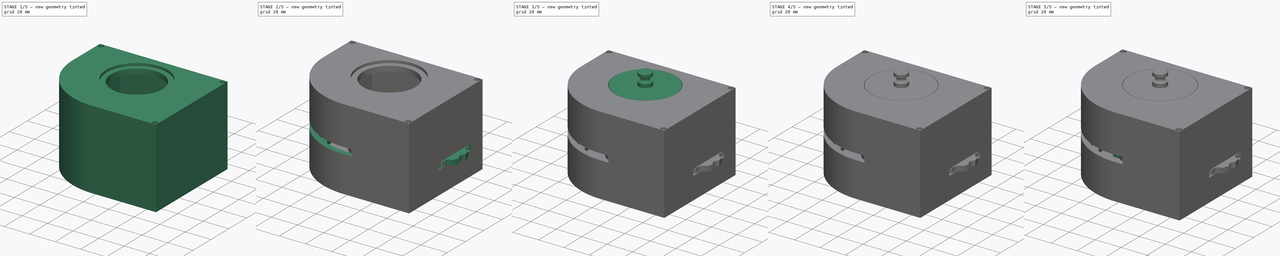
[diagram: build sequence overview — one tinted view per stage of 5, left to right]
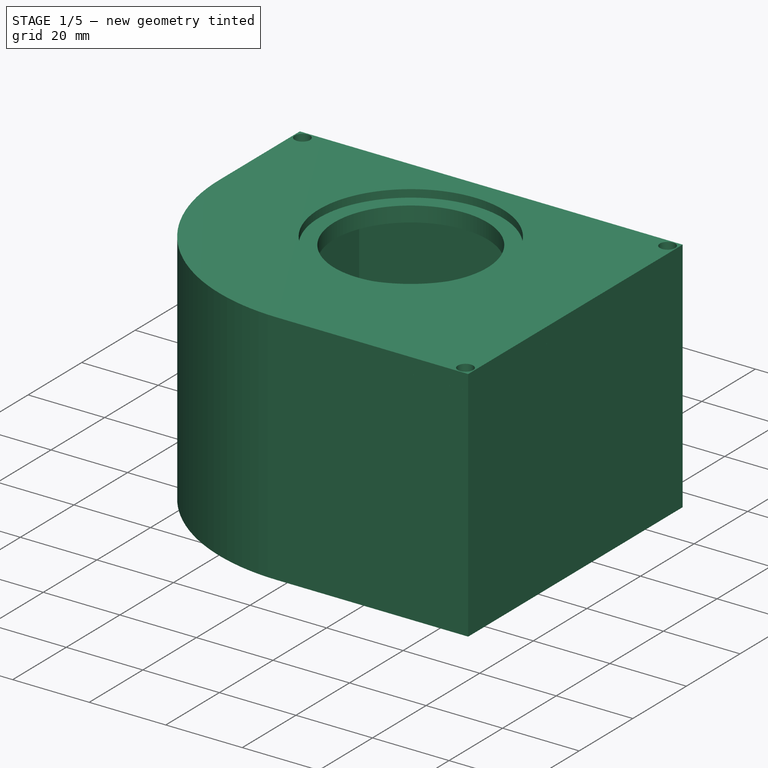
[diagram: stage 1 of 5 — iso view after this stage's code; geometry added in this stage tinted green]
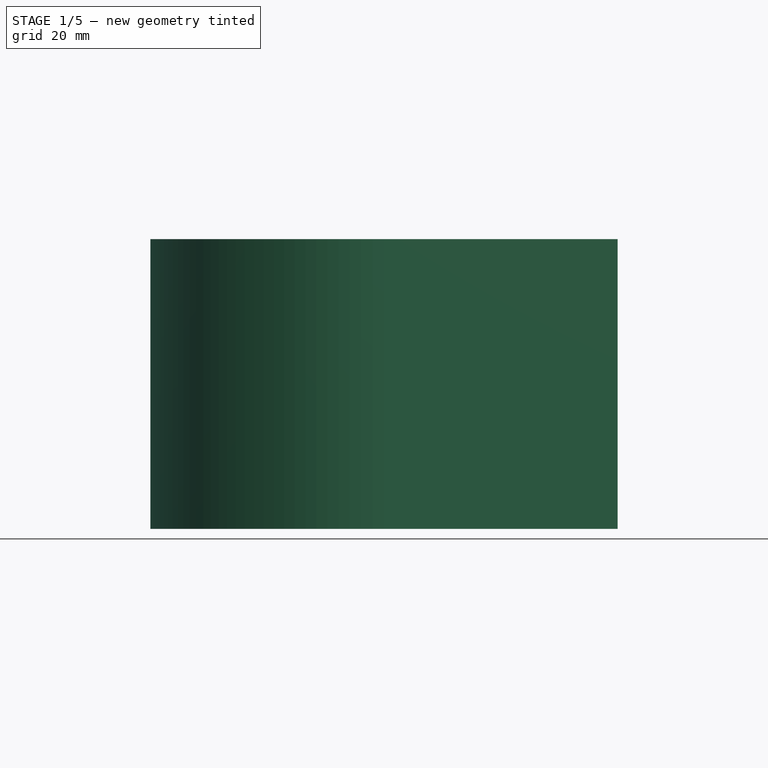
[diagram: stage 1 of 5 — front view after this stage's code; geometry added in this stage tinted green]
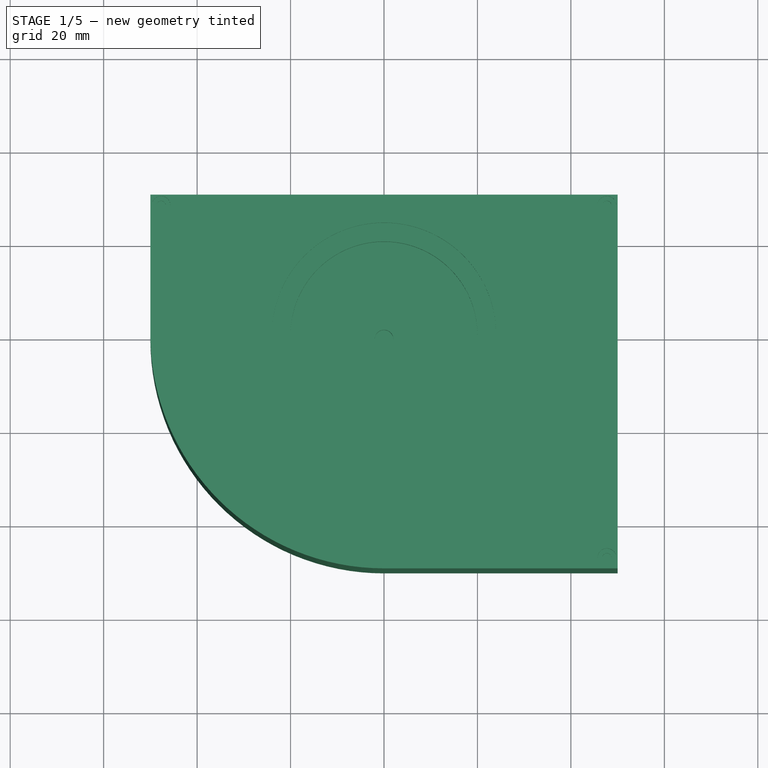
[diagram: stage 1 of 5 — top view after this stage's code; geometry added in this stage tinted green]
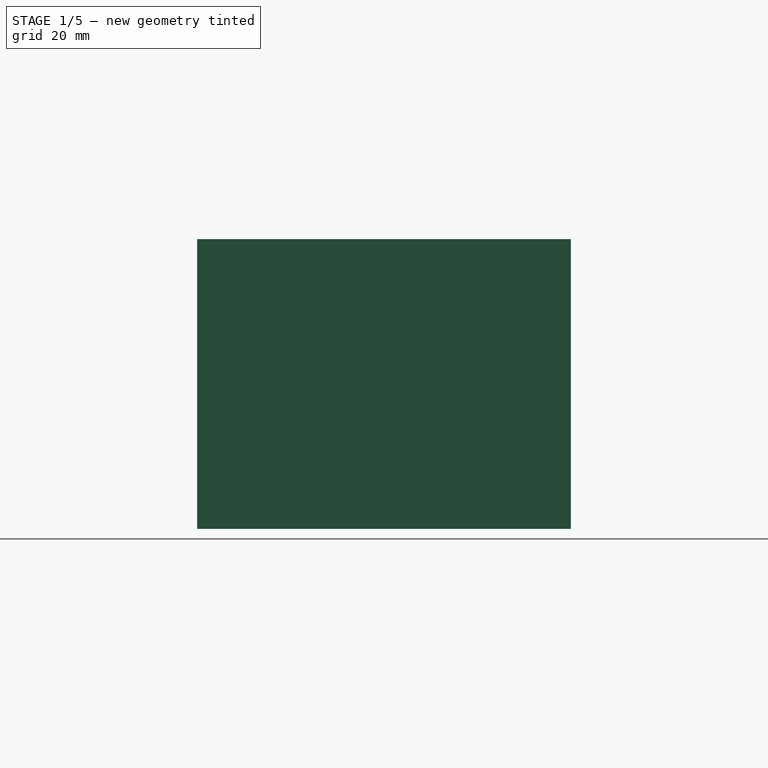
[diagram: stage 1 of 5 — right view after this stage's code; geometry added in this stage tinted green]
FCSTD DOCUMENT  (FreeCAD 0.17R13541 (Git))
Label: Скетч_0.7.1_земля
License: All rights reserved
LicenseURL: http://en.wikipedia.org/wiki/All_rights_reserved
objects: Sketcher::SketchObject×43, PartDesign::Pocket×22, PartDesign::Pad×21, PartDesign::ShapeBinder×7, PartDesign::Body×7, Part::Cylinder×4, Part::Box×4, Part::MultiFuse×3, PartDesign::Fillet×3, Part::Cut×2, Spreadsheet::Sheet×1
note: 159 computed .brp shape members not serialized (recipe doc carries the construction recipe); baked Part::Feature solids carry a one-line shape summary decoded from their .brp

FEATURE [Sketcher::SketchObject] Sketch
  MapMode = 5
  Support = -> [XY_Plane]
  expr: Constraints[117] = dip.ctenka
  expr: Constraints[68] = dip.ctenka
  expr: Constraints[67] = dip.ctenka
  sketch-geometry (39):
    g0: LineSegment StartX=50 StartY=-50 StartZ=0 EndX=50 EndY=30 EndZ=0
    g1: LineSegment StartX=50 StartY=30 StartZ=0 EndX=-50 EndY=30 EndZ=0
    g2: ArcOfCircle CenterX=0 CenterY=0 CenterZ=0 NormalX=0 NormalY=0 NormalZ=1 AngleXU=0 Radius=50 StartAngle=3.14159 EndAngle=4.71239
    g3: LineSegment StartX=1.5e-11 StartY=-50 StartZ=0 EndX=50 EndY=-50 EndZ=0
    g4: LineSegment [constr] StartX=10 StartY=10 StartZ=0 EndX=-30 EndY=10 EndZ=0
    g5: LineSegment [constr] StartX=-30 StartY=10 StartZ=0 EndX=-30 EndY=-10 EndZ=0
    g6: LineSegment [constr] StartX=-30 StartY=-10 StartZ=0 EndX=10 EndY=-10 EndZ=0
    g7: LineSegment [constr] StartX=10 StartY=-10 StartZ=0 EndX=10 EndY=10 EndZ=0
    g8: LineSegment [constr] StartX=-10 StartY=-10 StartZ=0 EndX=-10 EndY=10 EndZ=0
    g9: Circle [constr] CenterX=36 CenterY=0 CenterZ=0 NormalX=0 NormalY=0 NormalZ=1 AngleXU=0 Radius=20
    g10: ArcOfCircle [constr] CenterX=0 CenterY=0 CenterZ=0 NormalX=0 NormalY=0 NormalZ=1 AngleXU=0 Radius=20 StartAngle=3.14159 EndAngle=4.71239
    g11: ArcOfCircle [constr] CenterX=0 CenterY=0 CenterZ=0 NormalX=0 NormalY=0 NormalZ=1 AngleXU=0 Radius=24 StartAngle=3.14159 EndAngle=4.71239
    g12: ArcOfCircle [constr] CenterX=-22 CenterY=0 CenterZ=0 NormalX=0 NormalY=0 NormalZ=1 AngleXU=0 Radius=2 StartAngle=0 EndAngle=3.14159
    g13: ArcOfCircle [constr] CenterX=0 CenterY=-22 CenterZ=0 NormalX=0 NormalY=0 NormalZ=1 AngleXU=0 Radius=2 StartAngle=4.71239 EndAngle=7.85398
    g14: ArcOfCircle [constr] CenterX=36 CenterY=0 CenterZ=0 NormalX=0 NormalY=0 NormalZ=1 AngleXU=0 Radius=16 StartAngle=2.0944 EndAngle=4.18879
    g15: Circle [constr] CenterX=36 CenterY=0 CenterZ=0 NormalX=0 NormalY=0 NormalZ=1 AngleXU=0 Radius=2.5
    g16: LineSegment [constr] StartX=28 StartY=13.8564 StartZ=0 EndX=36 EndY=0 EndZ=0
    g17: LineSegment [constr] StartX=36 StartY=0 StartZ=0 EndX=28 EndY=-13.8564 EndZ=0
    g18: LineSegment [constr] StartX=36 StartY=0 StartZ=0 EndX=23.1442 EndY=15.3209 EndZ=0
    g19: LineSegment [constr] StartX=36 StartY=0 StartZ=0 EndX=23.1442 EndY=-15.3209 EndZ=0
    g20: LineSegment [constr] StartX=36 StartY=0 StartZ=0 EndX=17.8738 EndY=-8.45237 EndZ=0
    g21: LineSegment [constr] StartX=36 StartY=0 StartZ=0 EndX=17.8738 EndY=8.45237 EndZ=0
    g22: LineSegment [constr] StartX=36 StartY=0 StartZ=0 EndX=16 EndY=0 EndZ=0
    g23: LineSegment [constr] StartX=50 StartY=-14.2829 StartZ=0 EndX=50 EndY=14.2829 EndZ=0
    g24: LineSegment [constr] StartX=-46 StartY=26 StartZ=0 EndX=46 EndY=26 EndZ=0
    g25: LineSegment [constr] StartX=46 StartY=26 StartZ=0 EndX=46 EndY=-46 EndZ=0
    g26: LineSegment [constr] StartX=46 StartY=-46 StartZ=0 EndX=1.4e-11 EndY=-46 EndZ=0
    g27: ArcOfCircle [constr] CenterX=0 CenterY=0 CenterZ=0 NormalX=0 NormalY=0 NormalZ=1 AngleXU=0 Radius=46 StartAngle=3.14159 EndAngle=4.71239
    g28: Circle [constr] CenterX=0 CenterY=0 CenterZ=0 NormalX=0 NormalY=0 NormalZ=1 AngleXU=0 Radius=5
    g29: LineSegment [constr] StartX=-20 StartY=10 StartZ=0 EndX=-20 EndY=6 EndZ=0
    g30: LineSegment [constr] StartX=-20 StartY=6 StartZ=0 EndX=-10 EndY=6 EndZ=0
    g31: LineSegment [constr] StartX=-10 StartY=6 StartZ=0 EndX=-10 EndY=-6 EndZ=0
    g32: LineSegment [constr] StartX=-10 StartY=-6 StartZ=0 EndX=-20 EndY=-6 EndZ=0
    g33: LineSegment [constr] StartX=-20 StartY=-6 StartZ=0 EndX=-20 EndY=-10 EndZ=0
    g34: LineSegment [constr] StartX=-20 StartY=10 StartZ=0 EndX=-30 EndY=3 EndZ=0
    g35: LineSegment [constr] StartX=-20 StartY=-10 StartZ=0 EndX=-30 EndY=-3 EndZ=0
    g36: Circle [constr] CenterX=36 CenterY=0 CenterZ=0 NormalX=0 NormalY=0 NormalZ=1 AngleXU=0 Radius=15
    g37: LineSegment [constr] StartX=-46 StartY=26 StartZ=0 EndX=-46 EndY=-1e-11 EndZ=0
    g38: LineSegment StartX=-50 StartY=30 StartZ=0 EndX=-50 EndY=-3.8326e-07 EndZ=0
  constraints (118):
    c: Coincident(g0,g1)
    c: Horizontal(g1)
    c: Coincident(g3,g0)
    c: Horizontal(g3)
    c: Vertical(g0)
    c: DistanceX(g1,g0) = 100
    c: DistanceY(g0,g0) = 80
    c: Coincident(g4,g5)
    c: Coincident(g5,g6)
    c: Coincident(g6,g7)
    c: Coincident(g7,g4)
    c: Horizontal(g4)
    c: Horizontal(g6)
    c: Vertical(g5)
    c: Vertical(g7)
    c: DistanceY(g6,g4) = 20
    c: DistanceX(g5,g6) = 40
    c: Vertical(g8)
    c: Symmetric(g6,g4,g-1)
    c: PointOnObject(g9,g-1)
    c: Radius(g9) = 20
    c: Coincident(g10,g-1)
    c: PointOnObject(g10,g-1)
    c: PointOnObject(g10,g-2)
    c: Coincident(g11,g-1)
    c: PointOnObject(g11,g-1)
    c: PointOnObject(g11,g-2)
    c: PointOnObject(g12,g-1)
    c: Coincident(g12,g11)
    c: Coincident(g12,g10)
    c: Coincident(g13,g10)
    c: Coincident(g13,g11)
    c: PointOnObject(g13,g-2)
    c: Coincident(g14,g9)
    c: Coincident(g15,g9)
    c: Coincident(g16,g9)
    c: Coincident(g16,g17)
    c: Coincident(g17,g14)
    c: Coincident(g14,g16)
    c: Radius(g14) = 16
    c: Coincident(g18,g9)
    c: PointOnObject(g18,g9)
    c: Coincident(g19,g9)
    c: PointOnObject(g19,g9)
    c: Coincident(g20,g9)
    c: PointOnObject(g20,g9)
    c: Coincident(g21,g9)
    c: PointOnObject(g21,g9)
    c: Coincident(g22,g9)
    c: PointOnObject(g22,g9)
    c: Angle(g22,g20) = 0.436332
    c: Angle(g20,g19) = 0.436332
    c: Angle(g21,g22) = 0.436332
    c: Angle(g18,g21) = 0.436332
    c: Angle(g16,g17) = 2.0944
    c: Vertical(g14,g14)
    c: PointOnObject(g22,g-1)
    c: PointOnObject(g23,g9)
    c: PointOnObject(g23,g9)
    c: PointOnObject(g23,g0)
    c: PointOnObject(g23,g0)
    c: Radius(g13) = 2
    c: Horizontal(g24)
    c: Coincident(g24,g25)
    c: Vertical(g25)
    c: Coincident(g25,g26)
    c: Horizontal(g26)
    c: DistanceX(g24,g0) = 4
    c: DistanceY(g24,g0) = 4
    c: Radius(g15) = 2.5
    c: Coincident(g28,g-1)
    c: Radius(g28) = 5
    c: PointOnObject(g29,g4)
    c: Vertical(g29)
    c: Coincident(g29,g30)
    c: Horizontal(g30)
    c: Coincident(g30,g31)
    c: Vertical(g31)
    c: Coincident(g31,g32)
    c: Horizontal(g32)
    c: Coincident(g32,g33)
    c: PointOnObject(g33,g6)
    c: Vertical(g33)
    c: Symmetric(g31,g30,g-1)
    c: Vertical(g32,g29)
    c: DistanceX(g31,g6) = 20
    c: DistanceY(g33,g32) = 4
    c: DistanceX(g32,g31) = 10
    c: PointOnObject(g8,g6)
    c: Vertical(g8,g31)
    c: Symmetric(g8,g6,g-2)
    c: Coincident(g29,g34)
    c: PointOnObject(g34,g5)
    c: Coincident(g33,g35)
    c: PointOnObject(g35,g5)
    c: Symmetric(g35,g34,g-1)
    c: DistanceY(g35,g34) = 6
    c: DistanceY(g-1,g0) = 30
    c: Symmetric(g0,g1,g-2)
    c: DistanceX(g-1,g9) = 36
    c: Radius(g10) = 20
    c: PointOnObject(g8,g4)
    c: Coincident(g36,g9)
    c: Radius(g36) = 15
    c: Coincident(g27,g-1)
    c: Coincident(g37,g24)
    c: Coincident(g37,g27)
    c: Vertical(g37)
    c: Angle(g27) = 1.5708
    c: Horizontal(g-1,g27)
    c: Coincident(g26,g27)
    c: Coincident(g2,g-1)
    c: Coincident(g3,g2)
    c: Coincident(g38,g2)
    c: Vertical(g38)
    c: Coincident(g38,g1)
    c: PointOnObject(g2,g-2)
    c: DistanceY(g0,g25) = 4
FEATURE [Spreadsheet::Sheet] Spreadsheet  label="dip"
  cells = A1=ctenka; B1(ctenka)=4; A2=dno; B2(dno)=8; A3=kuv; B3(kuv)=10; A4=zazuz; B4(zazuz)=0.29999999999999999; A5=zazsv; B5(zazsv)=0.40000000000000002; A6=zazbol; B6(zazbol)=1; A7=ugol; B7(ugol)=25; A8=r1; B8(r1)=4; A9=r2; B9(r2)=2; A10=dlinkuvd; B10(dlinkuvd)=50; A11=dlinshel; B11(dlinshel)=2; C11=дополнительная вставка для маленьких кювет; A12=rbarab; B12(rbarab)=20; A13=ugdiod; B13(ugdiod)=25; A14=ugctbar; B14(ugctbar)=140; A15=rastkrug; B15(rastkrug)=36; A16=dlindiod; B16(dlindiod)=6; A17=raddiod; B17(raddiod)=2.5; A18=radzash; B18(radzash)=4; A19=r3; B19(r3)=1; A20=raddkuv; B20(raddkuv)=20
FEATURE [PartDesign::Pad] Pad
  Length = 8
  Length2 = 100
  Profile = -> Sketch
  Type = 0
  expr: Length = dip.dno
FEATURE [Sketcher::SketchObject] Sketch008
  MapMode = 5
  Placement = pos=(0,0,8) rot=(0,0,1;0rad)
  expr: Constraints[1] = dip.rastkrug
  sketch-geometry (5):
    g0: Circle [constr] CenterX=36 CenterY=0 CenterZ=0 NormalX=0 NormalY=0 NormalZ=1 AngleXU=0 Radius=13
    g1: LineSegment StartX=23 StartY=13 StartZ=0 EndX=49 EndY=13 EndZ=0
    g2: LineSegment StartX=49 StartY=13 StartZ=0 EndX=49 EndY=-13 EndZ=0
    g3: LineSegment StartX=49 StartY=-13 StartZ=0 EndX=23 EndY=-13 EndZ=0
    g4: LineSegment StartX=23 StartY=-13 StartZ=0 EndX=23 EndY=13 EndZ=0
  constraints (15):
    c: PointOnObject(g0,g-1)
    c: DistanceX(g-1,g0) = 36
    c: Radius(g0) = 13
    c: Coincident(g1,g2)
    c: Coincident(g2,g3)
    c: Coincident(g3,g4)
    c: Coincident(g4,g1)
    c: Horizontal(g1)
    c: Horizontal(g3)
    c: Vertical(g2)
    c: Vertical(g4)
    c: Symmetric(g3,g1,g-1)
    c: Equal(g4,g3)
    c: DistanceX(g3,g3) = 26
    c: DistanceX(g-1,g1) = 23
FEATURE [PartDesign::Pad] Pad003
  BaseFeature = -> Pad
  Length = 10
  Length2 = 100
  Profile = -> Sketch008
  Type = 0
FEATURE [Sketcher::SketchObject] Sketch014
  MapMode = 5
  Placement = pos=(0,0,8) rot=(0,0,1;0rad)
  expr: Constraints[18] = dip.ctenka
  expr: Constraints[19] = dip.ctenka
  expr: Constraints[20] = dip.ctenka
  sketch-geometry (10):
    g0: LineSegment StartX=-50 StartY=30 StartZ=0 EndX=50 EndY=30 EndZ=0
    g1: LineSegment StartX=50 StartY=30 StartZ=0 EndX=50 EndY=-50 EndZ=0
    g2: LineSegment StartX=50 StartY=-50 StartZ=0 EndX=1.5e-11 EndY=-50 EndZ=0
    g3: LineSegment StartX=1.4e-11 StartY=-46 StartZ=0 EndX=46 EndY=-46 EndZ=0
    g4: LineSegment StartX=46 StartY=-46 StartZ=0 EndX=46 EndY=26 EndZ=0
    g5: LineSegment StartX=46 StartY=26 StartZ=0 EndX=-46 EndY=26 EndZ=0
    g6: LineSegment StartX=-46 StartY=26 StartZ=0 EndX=-46 EndY=-1e-11 EndZ=0
    g7: LineSegment StartX=-50 StartY=30 StartZ=0 EndX=-50 EndY=-3.8326e-07 EndZ=0
    g8: ArcOfCircle CenterX=0 CenterY=0 CenterZ=0 NormalX=0 NormalY=0 NormalZ=1 AngleXU=0 Radius=46 StartAngle=3.14159 EndAngle=4.71239
    g9: ArcOfCircle CenterX=0 CenterY=0 CenterZ=0 NormalX=0 NormalY=0 NormalZ=1 AngleXU=0 Radius=50 StartAngle=3.14159 EndAngle=4.71239
  constraints (21):
    c: Coincident(g0,g1)
    c: Coincident(g1,g2)
    c: PointOnObject(g3,g-2)
    c: Horizontal(g3)
    c: Coincident(g3,g4)
    c: Vertical(g4)
    c: Coincident(g4,g5)
    c: Horizontal(g5)
    c: Coincident(g5,g6)
    c: PointOnObject(g6,g-1)
    c: Vertical(g6)
    c: Vertical(g7)
    c: Coincident(g8,g-1)
    c: Coincident(g8,g6)
    c: Coincident(g8,g3)
    c: Coincident(g9,g-1)
    c: Coincident(g9,g7)
    c: Coincident(g9,g2)
    c: DistanceX(g4,g0) = 4
    c: DistanceY(g1,g3) = 4
    c: DistanceY(g5,g0) = 4
FEATURE [PartDesign::Pad] Pad006
  BaseFeature = -> Pad003
  Length = 50
  Length2 = 100
  Profile = -> Sketch014
  Type = 0
FEATURE [Sketcher::SketchObject] Sketch021
  MapMode = 5
  Placement = pos=(0,0,8) rot=(0,0,1;0rad)
  Support = -> [Pad006]
  expr: Constraints[1] = dip.r2
  sketch-geometry (1):
    g0: Circle CenterX=0 CenterY=0 CenterZ=0 NormalX=0 NormalY=0 NormalZ=1 AngleXU=0 Radius=2
  constraints (2):
    c: Coincident(g0,g-1)
    c: Radius(g0) = 2
FEATURE [PartDesign::Pocket] Pocket
  BaseFeature = -> Pad006
  Length = 4
  Length2 = 100
  Profile = -> Sketch021
  Type = 0
  expr: Length = dip.ctenka
FEATURE [Sketcher::SketchObject] Sketch022
  ExternalGeometry = -> [Pocket]
  MapMode = 5
  Placement = pos=(0,0,18) rot=(0,0,1;0rad)
  Support = -> [Pocket]
  expr: Constraints[1] = dip.r2
  sketch-geometry (1):
    g0: Circle CenterX=36 CenterY=0 CenterZ=0 NormalX=0 NormalY=0 NormalZ=1 AngleXU=0 Radius=2
  constraints (3):
    c: PointOnObject(g0,g-1)
    c: Radius(g0) = 2
    c: DistanceX(g-1,g0) = 36
FEATURE [PartDesign::Pocket] Pocket013
  BaseFeature = -> Pocket
  Length = 8
  Length2 = 100
  Profile = -> Sketch022
  Type = 0
  expr: Length = dip.ctenka * 2
FEATURE [PartDesign::ShapeBinder] CopyPad006
  Placement = pos=(0,0,50) rot=(0,0,1;0rad)
FEATURE [Sketcher::SketchObject] Sketch036
  ExternalGeometry = -> [CopyPad006]
  MapMode = 5
  Placement = pos=(0,0,58) rot=(0,0,1;0rad)
  Support = -> [CopyPad006]
  sketch-geometry (5):
    g0: LineSegment StartX=0 StartY=-50 StartZ=0 EndX=50 EndY=-50 EndZ=0
    g1: LineSegment StartX=50 StartY=-50 StartZ=0 EndX=50 EndY=30 EndZ=0
    g2: LineSegment StartX=50 StartY=30 StartZ=0 EndX=-50 EndY=30 EndZ=0
    g3: LineSegment StartX=-50 StartY=30 StartZ=0 EndX=-50 EndY=0 EndZ=0
    g4: ArcOfCircle CenterX=0 CenterY=0 CenterZ=0 NormalX=0 NormalY=0 NormalZ=1 AngleXU=0 Radius=50 StartAngle=3.14159 EndAngle=4.71239
  constraints (13):
    c: PointOnObject(g0,g-2)
    c: Coincident(g0,g-4)
    c: Horizontal(g0)
    c: Coincident(g0,g1)
    c: Coincident(g1,g-4)
    c: Coincident(g1,g2)
    c: Horizontal(g2)
    c: Coincident(g2,g3)
    c: PointOnObject(g3,g-1)
    c: Vertical(g3)
    c: Coincident(g4,g-1)
    c: Coincident(g4,g3)
    c: Coincident(g4,g0)
FEATURE [PartDesign::Pad] Pad012
  Length = 4
  Length2 = 100
  Placement = pos=(0,0,50) rot=(0,0,1;0rad)
  Profile = -> Sketch036
  Type = 0
  expr: Length = dip.ctenka
FEATURE [Sketcher::SketchObject] Sketch037
  MapMode = 5
  Placement = pos=(0,0,58) rot=(1,0,0;3.14159rad)
  Support = -> [Pad012]
  sketch-geometry (8):
    g0: ArcOfCircle CenterX=0 CenterY=0 CenterZ=0 NormalX=0 NormalY=0 NormalZ=1 AngleXU=0 Radius=26 StartAngle=1.5708 EndAngle=3.14159
    g1: ArcOfCircle CenterX=0 CenterY=0 CenterZ=0 NormalX=0 NormalY=0 NormalZ=1 AngleXU=0 Radius=24 StartAngle=1.5708 EndAngle=3.14159
    g2: LineSegment StartX=-24 StartY=0 StartZ=0 EndX=-24 EndY=-15 EndZ=0
    g3: LineSegment StartX=-24 StartY=-15 StartZ=0 EndX=-26 EndY=-15 EndZ=0
    g4: LineSegment StartX=-26 StartY=-15 StartZ=0 EndX=-26 EndY=-5e-12 EndZ=0
    g5: LineSegment StartX=-2e-12 StartY=24 StartZ=0 EndX=15 EndY=24 EndZ=0
    g6: LineSegment StartX=15 StartY=24 StartZ=0 EndX=15 EndY=26 EndZ=0
    g7: LineSegment StartX=15 StartY=26 StartZ=0 EndX=-3e-12 EndY=26 EndZ=0
  constraints (24):
    c: Coincident(g0,g-1)
    c: PointOnObject(g0,g-1)
    c: PointOnObject(g0,g-2)
    c: Coincident(g1,g-1)
    c: PointOnObject(g1,g-1)
    c: PointOnObject(g1,g-2)
    c: PointOnObject(g2,g-1)
    c: Vertical(g2)
    c: Coincident(g2,g3)
    c: Coincident(g3,g4)
    c: Coincident(g4,g0)
    c: Tangent(g1,g5) = 1.5708
    c: Coincident(g5,g6)
    c: Vertical(g6)
    c: Coincident(g6,g7)
    c: Coincident(g7,g0)
    c: Horizontal(g7)
    c: Vertical(g4)
    c: Horizontal(g3)
    c: Coincident(g2,g1)
    c: Equal(g2,g5)
    c: Radius(g1) = 24
    c: Radius(g0) = 26
    c: DistanceY(g2,g1) = 15
FEATURE [PartDesign::Pad] Pad013
  BaseFeature = -> Pad012
  Length = 45
  Length2 = 100
  Placement = pos=(0,0,50) rot=(0,0,1;0rad)
  Profile = -> Sketch037
  Type = 0
FEATURE [Sketcher::SketchObject] Sketch038
  ExternalGeometry = -> [Pad013]
  MapMode = 5
  Placement = pos=(0,0,58) rot=(1,0,0;3.14159rad)
  Support = -> [Pad013]
  expr: Constraints[14] = dip.ctenka
  expr: Constraints[13] = dip.ctenka
  sketch-geometry (5):
    g0: LineSegment StartX=-5e-12 StartY=46 StartZ=0 EndX=46 EndY=46 EndZ=0
    g1: LineSegment StartX=46 StartY=46 StartZ=0 EndX=46 EndY=-26 EndZ=0
    g2: LineSegment StartX=46 StartY=-26 StartZ=0 EndX=-46 EndY=-26 EndZ=0
    g3: LineSegment StartX=-46 StartY=-26 StartZ=0 EndX=-46 EndY=0 EndZ=0
    g4: ArcOfCircle CenterX=0 CenterY=0 CenterZ=0 NormalX=0 NormalY=0 NormalZ=1 AngleXU=0 Radius=46 StartAngle=1.5708 EndAngle=3.14159
  constraints (15):
    c: Horizontal(g0)
    c: Coincident(g0,g1)
    c: Vertical(g1)
    c: Coincident(g1,g2)
    c: Horizontal(g2)
    c: Coincident(g2,g3)
    c: PointOnObject(g3,g-1)
    c: Vertical(g3)
    c: Coincident(g4,g3)
    c: Coincident(g0,g4)
    c: PointOnObject(g0,g-2)
    c: Radius(g4) = 46
    c: Coincident(g4,g-1)
    c: DistanceY(g-3,g1) = 4
    c: DistanceX(g0,g-3) = 4
FEATURE [PartDesign::Pad] Pad014
  BaseFeature = -> Pad013
  Length = 2
  Length2 = 100
  Placement = pos=(0,0,50) rot=(0,0,1;0rad)
  Profile = -> Sketch038
  Type = 0
FEATURE [PartDesign::Body] Body006  label="Болтик2"
  Group = -> [CopyPocket020001,Sketch041,Pad017,Sketch042,Pad018]
  Origin = -> Origin006
  Tip = -> Pad018
FEATURE [Sketcher::SketchObject] Sketch043
  MapMode = 5
  Placement = pos=(0,0,62) rot=(0,0,1;0rad)
  Support = -> [Pad014]
  expr: Constraints[1] = dip.raddkuv
  sketch-geometry (1):
    g0: Circle CenterX=0 CenterY=0 CenterZ=0 NormalX=0 NormalY=0 NormalZ=1 AngleXU=0 Radius=20
  constraints (2):
    c: Coincident(g0,g-1)
    c: Radius(g0) = 20
FEATURE [PartDesign::Pocket] Pocket021
  BaseFeature = -> Pad014
  Length = 6
  Length2 = 100
  Placement = pos=(0,0,50) rot=(0,0,1;0rad)
  Profile = -> Sketch043
  Type = 0
FEATURE [PartDesign::ShapeBinder] CopyPocket021
  Placement = pos=(0,0,50) rot=(0,0,1;0rad)
FEATURE [Sketcher::SketchObject] Sketch044
  MapMode = 5
  Placement = pos=(0,0,62) rot=(0,0,1;0rad)
  Support = -> [Pocket021]
  sketch-geometry (1):
    g0: Circle CenterX=0 CenterY=0 CenterZ=0 NormalX=0 NormalY=0 NormalZ=1 AngleXU=0 Radius=24
  constraints (2):
    c: Coincident(g0,g-1)
    c: Radius(g0) = 24
FEATURE [PartDesign::Pocket] Pocket022
  BaseFeature = -> Pocket021
  Length = 2
  Length2 = 100
  Placement = pos=(0,0,50) rot=(0,0,1;0rad)
  Profile = -> Sketch044
  Type = 0
  expr: Length = dip.ctenka / 2
FEATURE [PartDesign::Body] Body  label="Основа"
  Group = -> [Sketch,Pad,Sketch008,Pad003,Sketch014,Pad006,Sketch021,Pocket,Sketch022,Pocket013,Sketch023,Pocket014,Sketch024,Pocket015,Sketch026,Pad008,Sketch032,Pad011,Sketch034,Pocket019,Sketch035,Pocket020,Sketch051,Pocket024]
  Origin = -> Origin
  Tip = -> Pocket024
FEATURE [Sketcher::SketchObject] Sketch052
  ExternalGeometry = -> [Pocket022]
  MapMode = 5
  Placement = pos=(0,0,62) rot=(0,0,1;0rad)
  Support = -> [Pocket022]
  expr: Constraints[11] = dip.ctenka / 2 + 0.29999999999999999
  expr: Constraints[9] = dip.ctenka / 2 + 0.29999999999999999
  expr: Constraints[5] = dip.ctenka / 2 + 0.29999999999999999
  sketch-geometry (5):
    g0: LineSegment [constr] StartX=-47.7 StartY=27.7 StartZ=0 EndX=47.7 EndY=27.7 EndZ=0
    g1: LineSegment [constr] StartX=47.7 StartY=27.7 StartZ=0 EndX=47.7 EndY=-47.71 EndZ=0
    g2: Circle CenterX=-47.7 CenterY=27.7 CenterZ=0 NormalX=0 NormalY=0 NormalZ=1 AngleXU=0 Radius=2
    g3: Circle CenterX=47.7 CenterY=27.7 CenterZ=0 NormalX=0 NormalY=0 NormalZ=1 AngleXU=0 Radius=2
    g4: Circle CenterX=47.7 CenterY=-47.71 CenterZ=0 NormalX=0 NormalY=0 NormalZ=1 AngleXU=0 Radius=2
  constraints (13):
    c: Horizontal(g0)
    c: Coincident(g0,g1)
    c: Vertical(g1)
    c: Coincident(g3,g0)
    c: Coincident(g4,g1)
    c: DistanceX(g0,g-4) = 2.3
    c: Equal(g3,g4)
    c: Equal(g4,g2)
    c: Radius(g2) = 2
    c: DistanceY(g2,g-4) = 2.3
    c: Coincident(g0,g2)
    c: DistanceX(g-4,g0) = 2.3
    c: DistanceY(g-3,g1) = 2.29
FEATURE [PartDesign::Pocket] Pocket025
  BaseFeature = -> Pocket022
  Length = 2
  Length2 = 100
  Placement = pos=(0,0,50) rot=(0,0,1;0rad)
  Profile = -> Sketch052
  Type = 0
FEATURE [Sketcher::SketchObject] Sketch053
  ExternalGeometry = -> [Pocket025]
  MapMode = 5
  Placement = pos=(0,0,60) rot=(0,0,1;0rad)
  Support = -> [Pocket025]
  sketch-geometry (3):
    g0: Circle CenterX=-47.7 CenterY=27.7 CenterZ=0 NormalX=0 NormalY=0 NormalZ=1 AngleXU=0 Radius=1
    g1: Circle CenterX=47.7 CenterY=27.7 CenterZ=0 NormalX=0 NormalY=0 NormalZ=1 AngleXU=0 Radius=1
    g2: Circle CenterX=47.7 CenterY=-47.71 CenterZ=0 NormalX=0 NormalY=0 NormalZ=1 AngleXU=0 Radius=1
  constraints (6):
    c: Coincident(g0,g-5)
    c: Coincident(g1,g-4)
    c: Coincident(g2,g-3)
    c: Equal(g2,g1)
    c: Equal(g1,g0)
    c: Radius(g0) = 1
FEATURE [PartDesign::Pocket] Pocket026
  BaseFeature = -> Pocket025
  Length = 2
  Length2 = 100
  Placement = pos=(0,0,50) rot=(0,0,1;0rad)
  Profile = -> Sketch053
  Type = 0
FEATURE [PartDesign::Body] Body004  label="Крышка"
  Group = -> [CopyPad006,Sketch036,Pad012,Sketch037,Pad013,Sketch038,Pad014,Sketch043,Pocket021,Sketch044,Pocket022,Sketch052,Pocket025,Sketch053,Pocket026]
  Origin = -> Origin004
  Tip = -> Pocket026
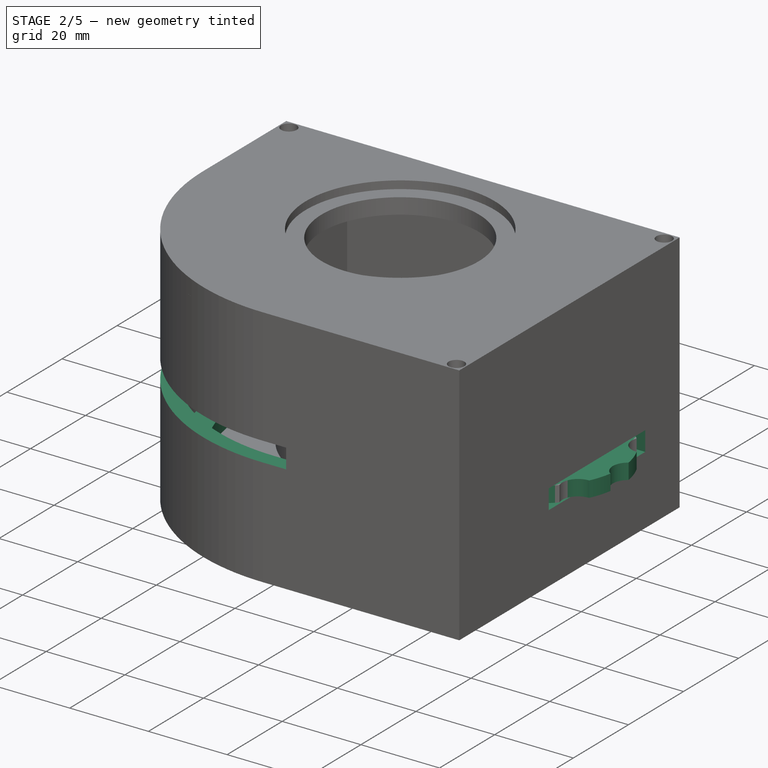
[diagram: stage 2 of 5 — iso view after this stage's code; geometry added in this stage tinted green]
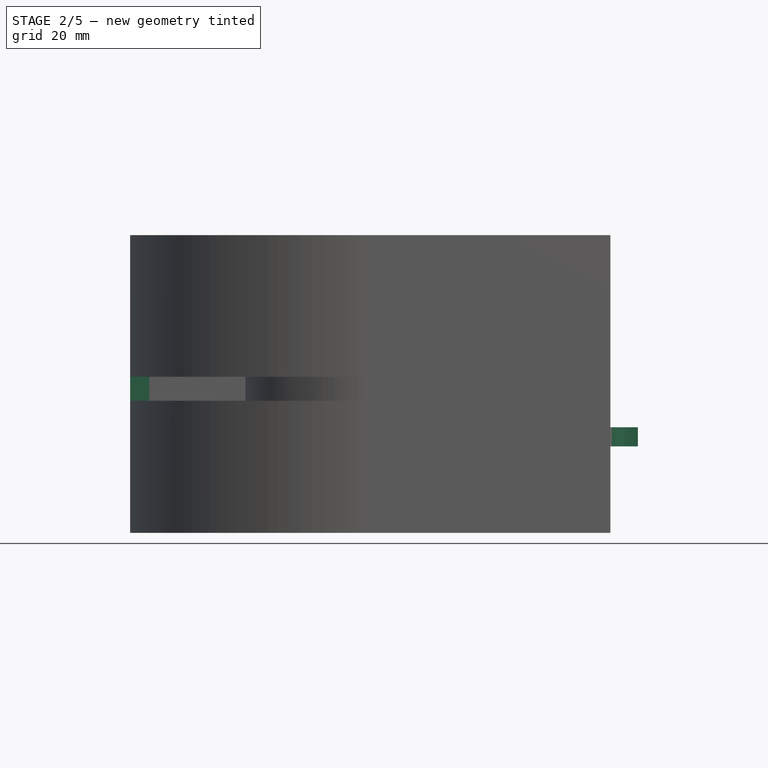
[diagram: stage 2 of 5 — front view after this stage's code; geometry added in this stage tinted green]
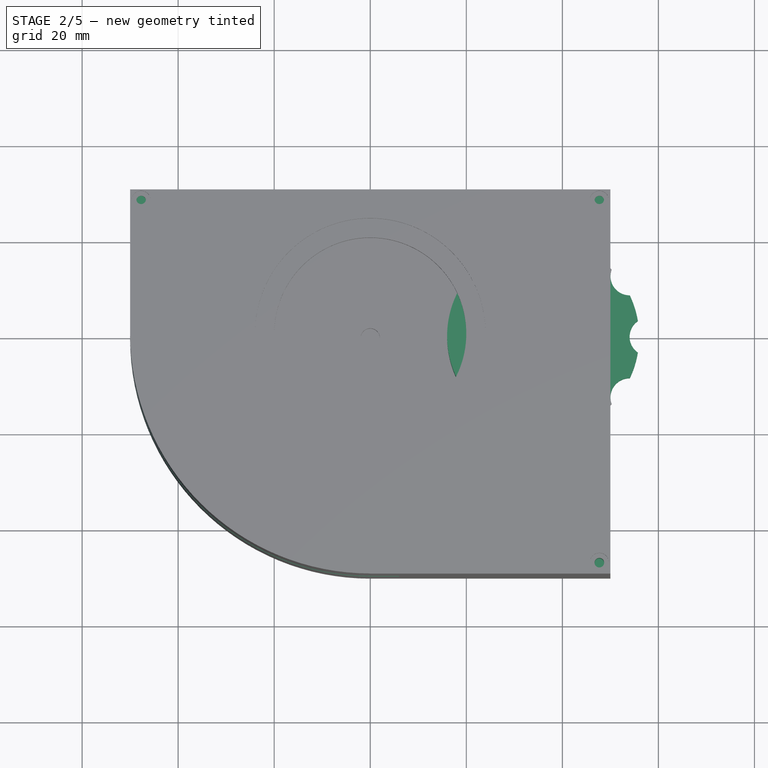
[diagram: stage 2 of 5 — top view after this stage's code; geometry added in this stage tinted green]
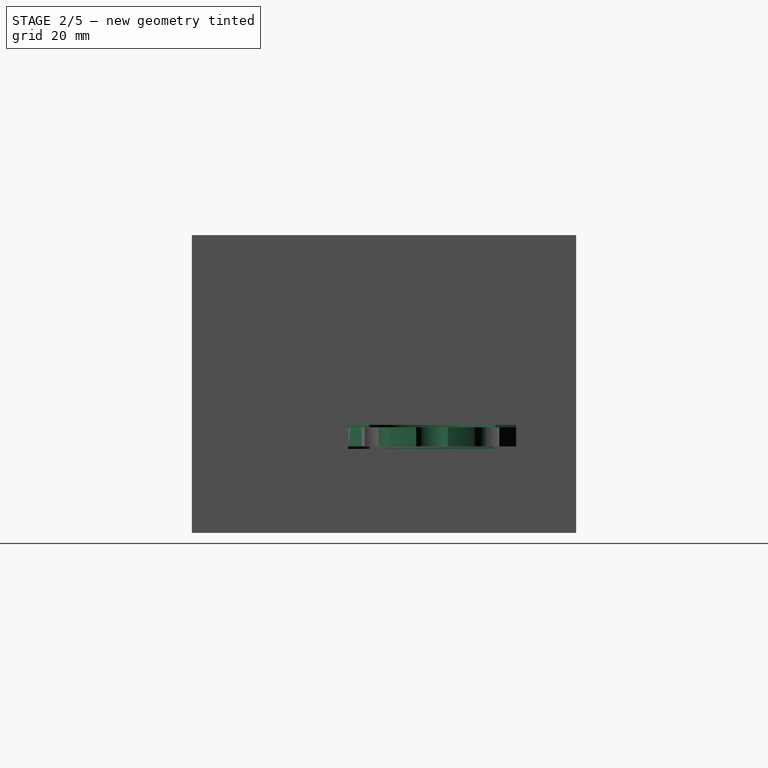
[diagram: stage 2 of 5 — right view after this stage's code; geometry added in this stage tinted green]
FEATURE [PartDesign::ShapeBinder] CopyPocket005
FEATURE [Sketcher::SketchObject] Sketch010
  MapMode = 5
  Placement = pos=(0,0,18) rot=(0,0,1;0rad)
  Support = -> [CopyPocket005]
  expr: Constraints[2] = dip.rbarab
  expr: Constraints[1] = dip.rastkrug
  sketch-geometry (1):
    g0: Circle CenterX=36 CenterY=0 CenterZ=0 NormalX=0 NormalY=0 NormalZ=1 AngleXU=0 Radius=20
  constraints (3):
    c: PointOnObject(g0,g-1)
    c: DistanceX(g-1,g0) = 36
    c: Radius(g0) = 20
FEATURE [PartDesign::Pad] Pad004
  Length = 4
  Length2 = 100
  Profile = -> Sketch010
  Type = 0
  expr: Length = dip.ctenka
FEATURE [Sketcher::SketchObject] Sketch011
  ExternalGeometry = -> [Pad004]
  MapMode = 5
  Placement = pos=(0,0,22) rot=(0,0,1;0rad)
  Support = -> [Pad004]
  expr: Constraints[14] = dip.ugctbar
  expr: Constraints[13] = dip.rbarab - dip.dlindiod
  sketch-geometry (10):
    g0: ArcOfCircle CenterX=36 CenterY=0 CenterZ=0 NormalX=0 NormalY=0 NormalZ=1 AngleXU=0 Radius=20 StartAngle=1.91986 EndAngle=4.36332
    g1: ArcOfCircle CenterX=36 CenterY=0 CenterZ=0 NormalX=0 NormalY=0 NormalZ=1 AngleXU=0 Radius=14 StartAngle=1.91986 EndAngle=4.36332
    g2: LineSegment StartX=31.2117 StartY=13.1557 StartZ=0 EndX=29.1596 EndY=18.7939 EndZ=0
    g3: LineSegment StartX=31.2117 StartY=-13.1557 StartZ=0 EndX=29.1596 EndY=-18.7939 EndZ=0
    g4: LineSegment [constr] StartX=29.1596 StartY=18.7939 StartZ=0 EndX=36 EndY=0 EndZ=0
    g5: LineSegment [constr] StartX=29.1596 StartY=-18.7939 StartZ=0 EndX=36 EndY=0 EndZ=0
    g6: LineSegment [constr] StartX=23.8248 StartY=-15.8671 StartZ=0 EndX=36 EndY=0 EndZ=0
    g7: LineSegment [constr] StartX=16.9257 StartY=-6.01412 StartZ=0 EndX=36 EndY=0 EndZ=0
    g8: LineSegment [constr] StartX=23.8248 StartY=15.8671 StartZ=0 EndX=36 EndY=0 EndZ=0
    g9: LineSegment [constr] StartX=16.9257 StartY=6.01412 StartZ=0 EndX=36 EndY=0 EndZ=0
  constraints (29):
    c: Coincident(g0,g-3)
    c: PointOnObject(g0,g-3)
    c: Coincident(g1,g0)
    c: Coincident(g2,g1)
    c: Coincident(g2,g0)
    c: Coincident(g3,g1)
    c: Coincident(g3,g0)
    c: Coincident(g4,g0)
    c: Coincident(g4,g0)
    c: Coincident(g5,g0)
    c: Coincident(g5,g0)
    c: PointOnObject(g1,g4)
    c: PointOnObject(g1,g5)
    c: Radius(g1) = 14
    c: Angle(g4,g5) = 2.44346
    c: PointOnObject(g6,g0)
    c: Coincident(g6,g0)
    c: PointOnObject(g7,g0)
    c: PointOnObject(g8,g0)
    c: Coincident(g8,g7)
    c: Coincident(g9,g0)
    c: Angle(g0,g8) = 0.523599
    c: Coincident(g7,g0)
    c: PointOnObject(g9,g0)
    c: Angle(g7,g6) = 0.610865
    c: Angle(g9,g7) = 0.610865
    c: Angle(g8,g9) = 0.610865
    c: Vertical(g0,g0)
    c: Vertical(g7,g9)
FEATURE [PartDesign::Pad] Pad005
  BaseFeature = -> Pad004
  Length = 8
  Length2 = 100
  Profile = -> Sketch011
  Type = 0
  expr: Length = dip.ctenka * 2
FEATURE [Sketcher::SketchObject] Sketch012
  ExternalGeometry = -> [Pad005]
  MapMode = 5
  Placement = pos=(0,0,22) rot=(0,0,1;0rad)
  Support = -> [Pad005]
  expr: Constraints[1] = dip.r1
  sketch-geometry (1):
    g0: Circle CenterX=36 CenterY=0 CenterZ=0 NormalX=0 NormalY=0 NormalZ=1 AngleXU=0 Radius=4
  constraints (2):
    c: Coincident(g0,g-3)
    c: Radius(g0) = 4
FEATURE [PartDesign::Pocket] Pocket006
  BaseFeature = -> Pad005
  Length = 2
  Length2 = 100
  Profile = -> Sketch012
  Type = 0
  expr: Length = dip.ctenka / 2
FEATURE [Sketcher::SketchObject] Sketch013
  ExternalGeometry = -> [Pocket006]
  MapMode = 5
  Placement = pos=(0,0,20) rot=(0,0,1;0rad)
  Support = -> [Pocket006]
  expr: Constraints[1] = dip.r2 + dip.zazsv
  sketch-geometry (1):
    g0: Circle CenterX=36 CenterY=0 CenterZ=0 NormalX=0 NormalY=0 NormalZ=1 AngleXU=0 Radius=2.4
  constraints (2):
    c: Coincident(g0,g-3)
    c: Radius(g0) = 2.4
FEATURE [PartDesign::Pocket] Pocket007
  BaseFeature = -> Pocket006
  Length = 2
  Length2 = 100
  Profile = -> Sketch013
  Type = 0
  expr: Length = dip.ctenka / 2
FEATURE [Sketcher::SketchObject] Sketch023
  ExternalGeometry = -> [Pocket013]
  MapMode = 5
  Placement = pos=(50,0,0) rot=(0.57735,0.57735,0.57735;2.0944rad)
  Support = -> [Pocket013]
  expr: Constraints[9] = dip.ctenka + dip.zazbol
  sketch-geometry (4):
    g0: LineSegment StartX=-17.5 StartY=22.5 StartZ=0 EndX=17.5 EndY=22.5 EndZ=0
    g1: LineSegment StartX=17.5 StartY=22.5 StartZ=0 EndX=17.5 EndY=17.5 EndZ=0
    g2: LineSegment StartX=17.5 StartY=17.5 StartZ=0 EndX=-17.5 EndY=17.5 EndZ=0
    g3: LineSegment StartX=-17.5 StartY=17.5 StartZ=0 EndX=-17.5 EndY=22.5 EndZ=0
  constraints (12):
    c: Coincident(g0,g1)
    c: Coincident(g1,g2)
    c: Coincident(g2,g3)
    c: Coincident(g3,g0)
    c: Horizontal(g0)
    c: Horizontal(g2)
    c: Vertical(g1)
    c: Vertical(g3)
    c: Symmetric(g1,g2,g-2)
    c: DistanceY(g1,g0) = 5
    c: DistanceX(g2,g1) = 35
    c: DistanceY(g-3,g1) = 17.5
FEATURE [PartDesign::Pocket] Pocket014
  BaseFeature = -> Pocket013
  Length = 4
  Length2 = 100
  Profile = -> Sketch023
  Type = 0
  expr: Length = dip.ctenka
FEATURE [Sketcher::SketchObject] Sketch024
  ExternalGeometry = -> [Pocket014]
  MapMode = 5
  Placement = pos=(0,-50,0) rot=(1,0,0;1.5708rad)
  Support = -> [Pocket014]
  expr: Constraints[8] = dip.ctenka + dip.zazbol
  sketch-geometry (4):
    g0: LineSegment StartX=6 StartY=32.5 StartZ=0 EndX=-50 EndY=32.5 EndZ=0
    g1: LineSegment StartX=-50 StartY=32.5 StartZ=0 EndX=-50 EndY=27.5 EndZ=0
    g2: LineSegment StartX=-50 StartY=27.5 StartZ=0 EndX=6 EndY=27.5 EndZ=0
    g3: LineSegment StartX=6 StartY=27.5 StartZ=0 EndX=6 EndY=32.5 EndZ=0
  constraints (12):
    c: Coincident(g0,g1)
    c: Coincident(g1,g2)
    c: Coincident(g2,g3)
    c: Coincident(g3,g0)
    c: Horizontal(g0)
    c: Horizontal(g2)
    c: Vertical(g1)
    c: Vertical(g3)
    c: DistanceY(g2,g0) = 5
    c: DistanceY(g-1,g2) = 27.5
    c: DistanceX(g-1,g0) = 6
    c: DistanceX(g0,g-1) = 50
FEATURE [PartDesign::Pocket] Pocket015
  BaseFeature = -> Pocket014
  Length = 56
  Length2 = 100
  Profile = -> Sketch024
  Type = 0
FEATURE [PartDesign::Body] Body002  label="Кюветодержатель"
  Group = -> [CopyPocket,Sketch002,Pad001,Sketch003,Pocket001,Sketch004,Pocket002,Sketch016,Pad007,Sketch017,Pocket009,Sketch018,Pocket010,Sketch019,Pocket011,Sketch027,Pocket016,Sketch028,Pocket017,Sketch029,Pocket018]
  Origin = -> Origin002
  Placement = pos=(0,0,0) rot=(0,0,1;1.5708rad)
  Tip = -> Pocket018
FEATURE [PartDesign::Pad] Pad008
  BaseFeature = -> Pocket015
  Length = 4
  Length2 = 100
  Profile = -> Sketch026
  Type = 0
  expr: Length = dip.ctenka
FEATURE [Sketcher::SketchObject] Sketch032
  ExternalGeometry = -> [Pad008]
  MapMode = 5
  Placement = pos=(23,0,0) rot=(0.57735,-0.57735,-0.57735;2.0944rad)
  Support = -> [Pad008]
  sketch-geometry (4):
    g0: LineSegment StartX=-2 StartY=8 StartZ=0 EndX=2 EndY=8 EndZ=0
    g1: LineSegment StartX=2 StartY=8 StartZ=0 EndX=2 EndY=19 EndZ=0
    g2: LineSegment StartX=2 StartY=19 StartZ=0 EndX=-2 EndY=19 EndZ=0
    g3: LineSegment StartX=-2 StartY=19 StartZ=0 EndX=-2 EndY=8 EndZ=0
  constraints (12):
    c: Coincident(g0,g1)
    c: Coincident(g1,g2)
    c: Coincident(g2,g3)
    c: Coincident(g3,g0)
    c: Horizontal(g0)
    c: Horizontal(g2)
    c: Vertical(g1)
    c: Vertical(g3)
    c: Symmetric(g1,g2,g-2)
    c: DistanceY(g0,g1) = 11
    c: DistanceX(g2,g1) = 4
    c: PointOnObject(g0,g-3)
FEATURE [PartDesign::Pad] Pad011
  BaseFeature = -> Pad008
  Length = 7
  Length2 = 100
  Profile = -> Sketch032
  Type = 0
FEATURE [Sketcher::SketchObject] Sketch034
  ExternalGeometry = -> [Pad011]
  MapMode = 5
  Placement = pos=(0,-2,0) rot=(1,0,0;1.5708rad)
  Support = -> [Pad011]
  sketch-geometry (9):
    g0: LineSegment StartX=16.5 StartY=19 StartZ=0 EndX=16.5 EndY=14.5 EndZ=0
    g1: LineSegment StartX=16.5 StartY=14.5 StartZ=0 EndX=23 EndY=8 EndZ=0
    g2: LineSegment StartX=23 StartY=8 StartZ=0 EndX=16 EndY=8 EndZ=0
    g3: LineSegment StartX=16 StartY=8 StartZ=0 EndX=16 EndY=19 EndZ=0
    g4: LineSegment StartX=16 StartY=19 StartZ=0 EndX=16.5 EndY=19 EndZ=0
    g5: LineSegment StartX=19.5 StartY=19 StartZ=0 EndX=19.5 EndY=14.5 EndZ=0
    g6: LineSegment StartX=19.5 StartY=14.5 StartZ=0 EndX=23 EndY=11 EndZ=0
    g7: LineSegment StartX=23 StartY=11 StartZ=0 EndX=23 EndY=19 EndZ=0
    g8: LineSegment StartX=23 StartY=19 StartZ=0 EndX=19.5 EndY=19 EndZ=0
  constraints (25):
    c: PointOnObject(g0,g-5)
    c: Coincident(g0,g1)
    c: Coincident(g1,g-3)
    c: Coincident(g1,g2)
    c: Coincident(g2,g-4)
    c: Coincident(g2,g3)
    c: Vertical(g3)
    c: Coincident(g3,g4)
    c: PointOnObject(g4,g-5)
    c: PointOnObject(g5,g-5)
    c: Coincident(g5,g6)
    c: PointOnObject(g6,g-3)
    c: Coincident(g6,g7)
    c: Coincident(g7,g-5)
    c: Coincident(g7,g8)
    c: Coincident(g8,g5)
    c: Vertical(g5)
    c: Vertical(g0)
    c: Angle(g7,g6) = 0.785398
    c: Parallel(g1,g6)
    c: Horizontal(g0,g5)
    c: DistanceY(g1,g6) = 3
    c: Coincident(g3,g-5)
    c: Coincident(g0,g4)
    c: DistanceX(g3,g0) = 0.5
FEATURE [PartDesign::Pocket] Pocket019
  BaseFeature = -> Pad011
  Length = 4
  Length2 = 100
  Profile = -> Sketch034
  Type = 0
FEATURE [Sketcher::SketchObject] Sketch035
  ExternalGeometry = -> [Pocket019]
  MapMode = 5
  Placement = pos=(16.5,0,0) rot=(0.57735,-0.57735,-0.57735;2.0944rad)
  Support = -> [Pocket019]
  expr: Constraints[14] = dip.radzash
  sketch-geometry (5):
    g0: ArcOfCircle CenterX=0 CenterY=14.6 CenterZ=0 NormalX=0 NormalY=0 NormalZ=1 AngleXU=0 Radius=4 StartAngle=1.0472 EndAngle=2.0944
    g1: LineSegment [constr] StartX=-2 StartY=18.6 StartZ=0 EndX=2 EndY=18.6 EndZ=0
    g2: LineSegment StartX=-2 StartY=18.0641 StartZ=0 EndX=-2 EndY=19 EndZ=0
    g3: LineSegment StartX=-2 StartY=19 StartZ=0 EndX=2 EndY=19 EndZ=0
    g4: LineSegment StartX=2 StartY=19 StartZ=0 EndX=2 EndY=18.0641 EndZ=0
  constraints (15):
    c: PointOnObject(g0,g-2)
    c: PointOnObject(g0,g-4)
    c: PointOnObject(g0,g-3)
    c: PointOnObject(g1,g-4)
    c: PointOnObject(g1,g-3)
    c: Horizontal(g1)
    c: Tangent(g0,g1)
    c: DistanceY(g1,g-5) = 0.4
    c: Coincident(g0,g2)
    c: Coincident(g2,g3)
    c: Coincident(g3,g-5)
    c: Coincident(g3,g4)
    c: Coincident(g4,g0)
    c: Coincident(g2,g-5)
    c: Radius(g0) = 4
FEATURE [PartDesign::Pocket] Pocket020
  BaseFeature = -> Pocket019
  Length = 3
  Length2 = 100
  Profile = -> Sketch035
  Type = 0
FEATURE [PartDesign::Body] Body005  label="Болтик1"
  Group = -> [CopyPocket020,Sketch039,Pad015,Sketch040,Pad016,Sketch049,Pad023]
  Origin = -> Origin005
  Tip = -> Pad023
FEATURE [Sketcher::SketchObject] Sketch050
  ExternalGeometry = -> [Pocket007]
  MapMode = 5
  Placement = pos=(0,0,22) rot=(0,0,1;0rad)
  Support = -> [Pocket007]
  sketch-geometry (11):
    g0: Circle [constr] CenterX=36 CenterY=0 CenterZ=0 NormalX=0 NormalY=0 NormalZ=1 AngleXU=0 Radius=22
    g1: LineSegment [constr] StartX=54.0213 StartY=12.6187 StartZ=0 EndX=17.9787 EndY=-12.6187 EndZ=0
    g2: LineSegment [constr] StartX=14 StartY=0 StartZ=0 EndX=58 EndY=0 EndZ=0
    g3: LineSegment [constr] StartX=17.9787 StartY=12.6187 StartZ=0 EndX=54.0213 EndY=-12.6187 EndZ=0
    g4: LineSegment [constr] StartX=28.4756 StartY=-20.6732 StartZ=0 EndX=43.5244 EndY=20.6732 EndZ=0
    g5: LineSegment [constr] StartX=28.4756 StartY=20.6732 StartZ=0 EndX=43.5244 EndY=-20.6732 EndZ=0
    g6: Circle CenterX=43.5244 CenterY=20.6732 CenterZ=0 NormalX=0 NormalY=0 NormalZ=1 AngleXU=0 Radius=4
    g7: Circle CenterX=54.0213 CenterY=12.6187 CenterZ=0 NormalX=0 NormalY=0 NormalZ=1 AngleXU=0 Radius=4
    g8: Circle CenterX=58 CenterY=0 CenterZ=0 NormalX=0 NormalY=0 NormalZ=1 AngleXU=0 Radius=4
    g9: Circle CenterX=54.0213 CenterY=-12.6187 CenterZ=0 NormalX=0 NormalY=0 NormalZ=1 AngleXU=0 Radius=4
    g10: Circle CenterX=43.5244 CenterY=-20.6732 CenterZ=0 NormalX=0 NormalY=0 NormalZ=1 AngleXU=0 Radius=4
  constraints (32):
    c: Coincident(g0,g-3)
    c: PointOnObject(g1,g0)
    c: PointOnObject(g1,g0)
    c: PointOnObject(g2,g0)
    c: PointOnObject(g2,g0)
    c: PointOnObject(g3,g0)
    c: PointOnObject(g3,g0)
    c: PointOnObject(g4,g0)
    c: PointOnObject(g4,g0)
    c: PointOnObject(g5,g0)
    c: PointOnObject(g5,g0)
    c: PointOnObject(g0,g5)
    c: PointOnObject(g0,g1)
    c: PointOnObject(g0,g2)
    c: PointOnObject(g0,g4)
    c: PointOnObject(g0,g3)
    c: PointOnObject(g2,g-1)
    c: Angle(g2,g1) = 0.610865
    c: Angle(g3) = -0.610865
    c: Angle(g5,g2) = 1.22173
    c: Angle(g2,g4) = 1.22173
    c: Coincident(g6,g4)
    c: Coincident(g7,g1)
    c: Coincident(g9,g3)
    c: Coincident(g10,g5)
    c: Equal(g10,g9)
    c: Equal(g9,g8)
    c: Equal(g8,g7)
    c: Equal(g7,g6)
    c: Radius(g6) = 4
    c: Coincident(g8,g2)
    c: Radius(g0) = 22
FEATURE [PartDesign::Pocket] Pocket023
  BaseFeature = -> Pocket007
  Length = 5
  Length2 = 100
  Profile = -> Sketch050
  Type = 0
FEATURE [Sketcher::SketchObject] Sketch051
  ExternalGeometry = -> [Pocket020]
  MapMode = 5
  Placement = pos=(0,0,58) rot=(0,0,1;0rad)
  Support = -> [Pocket020]
  expr: Constraints[12] = dip.ctenka / 2 + 0.29999999999999999
  expr: Constraints[11] = dip.ctenka / 2 + 0.29999999999999999
  expr: Constraints[10] = dip.ctenka / 2 + 0.29999999999999999
  expr: Constraints[9] = dip.ctenka / 2
  sketch-geometry (5):
    g0: LineSegment [constr] StartX=47.7 StartY=-47.7 StartZ=0 EndX=47.7 EndY=28 EndZ=0
    g1: LineSegment [constr] StartX=47.7 StartY=28 StartZ=0 EndX=-48 EndY=28 EndZ=0
    g2: Circle CenterX=47.7 CenterY=28 CenterZ=0 NormalX=0 NormalY=0 NormalZ=1 AngleXU=0 Radius=1
    g3: Circle CenterX=47.7 CenterY=-47.7 CenterZ=0 NormalX=0 NormalY=0 NormalZ=1 AngleXU=0 Radius=1
    g4: Circle CenterX=-48 CenterY=28 CenterZ=0 NormalX=0 NormalY=0 NormalZ=1 AngleXU=0 Radius=1
  constraints (13):
    c: Vertical(g0)
    c: Coincident(g0,g1)
    c: Horizontal(g1)
    c: Coincident(g2,g0)
    c: Coincident(g3,g0)
    c: Coincident(g4,g1)
    c: Equal(g4,g2)
    c: Equal(g2,g3)
    c: Radius(g4) = 1
    c: DistanceY(g1,g-4) = 2
    c: DistanceX(g0,g-4) = 2.3
    c: DistanceY(g-3,g0) = 2.3
    c: DistanceX(g-4,g1) = 2
FEATURE [PartDesign::Pocket] Pocket024
  BaseFeature = -> Pocket020
  Length = 6
  Length2 = 100
  Profile = -> Sketch051
  Type = 0
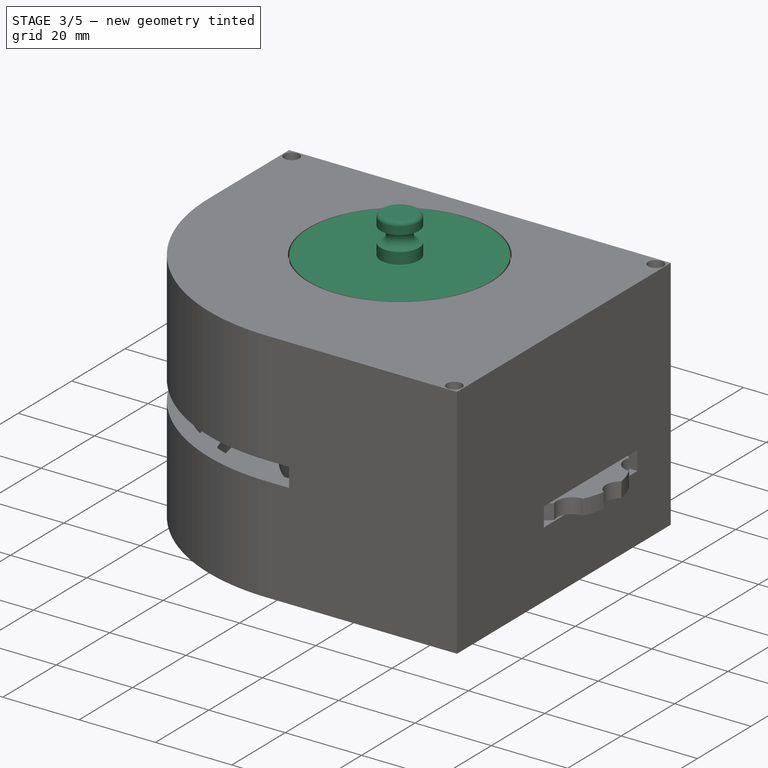
[diagram: stage 3 of 5 — iso view after this stage's code; geometry added in this stage tinted green]
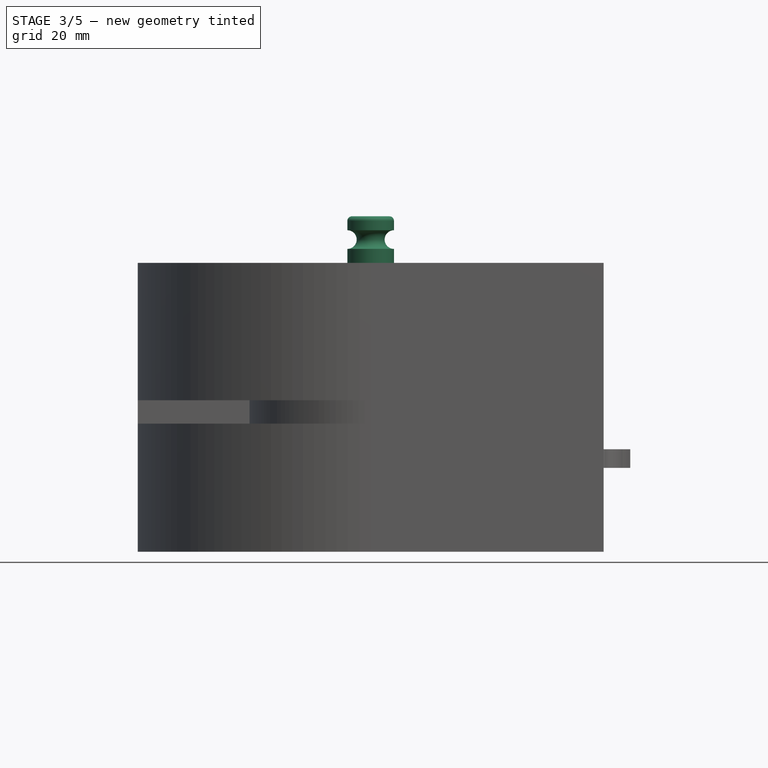
[diagram: stage 3 of 5 — front view after this stage's code; geometry added in this stage tinted green]
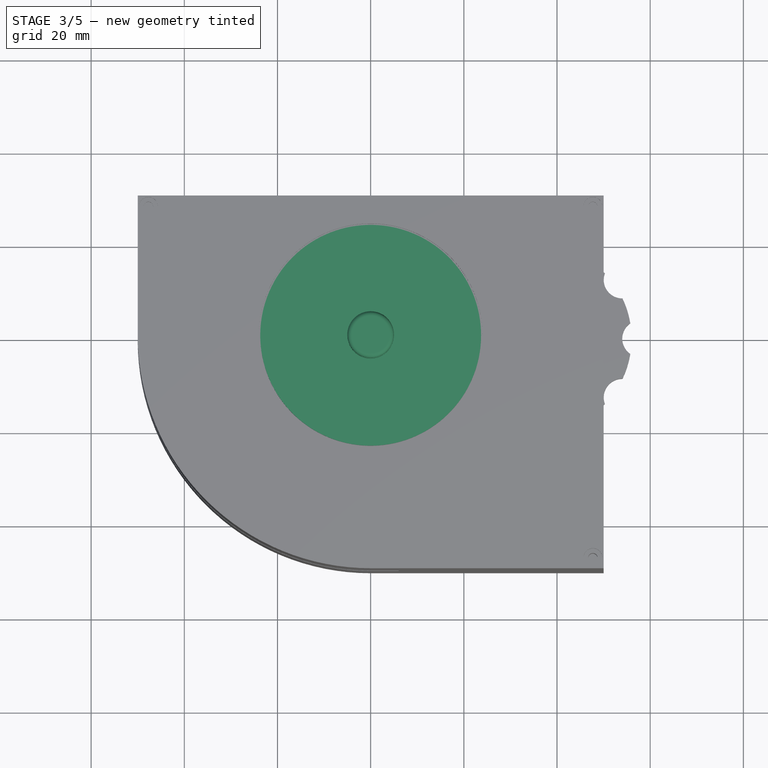
[diagram: stage 3 of 5 — top view after this stage's code; geometry added in this stage tinted green]
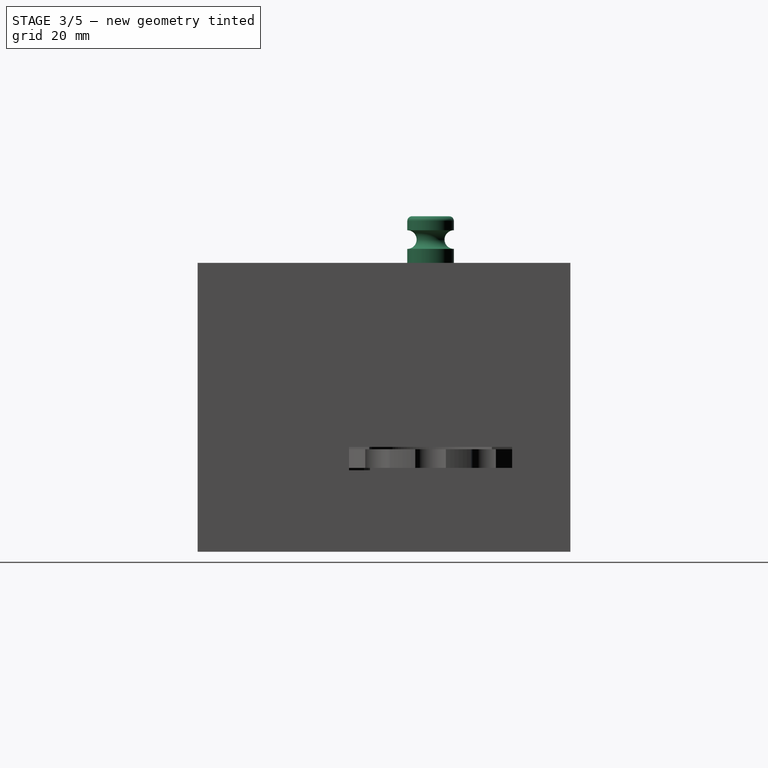
[diagram: stage 3 of 5 — right view after this stage's code; geometry added in this stage tinted green]
FEATURE [PartDesign::ShapeBinder] CopyPocket020
  Placement = pos=(0,0,-4) rot=(0,0,1;0rad)
FEATURE [Sketcher::SketchObject] Sketch039
  ExternalGeometry = -> [CopyPocket020]
  MapMode = 5
  Placement = pos=(0,0,14) rot=(0,0,1;0rad)
  Support = -> [CopyPocket020]
  expr: Constraints[1] = dip.r2 - 0.10000000000000001
  sketch-geometry (1):
    g0: Circle CenterX=36 CenterY=0 CenterZ=0 NormalX=0 NormalY=0 NormalZ=1 AngleXU=0 Radius=1.9
  constraints (2):
    c: Coincident(g0,g-3)
    c: Radius(g0) = 1.9
FEATURE [PartDesign::Pad] Pad015
  Length = 6
  Length2 = 100
  Placement = pos=(0,0,-4) rot=(0,0,1;0rad)
  Profile = -> Sketch039
  Type = 0
  expr: Length = dip.ctenka * 1.5
FEATURE [Sketcher::SketchObject] Sketch040
  ExternalGeometry = -> [Pad015]
  MapMode = 5
  Placement = pos=(0,0,20) rot=(0,0,1;0rad)
  Support = -> [Pad015]
  expr: Constraints[1] = dip.r1 - 0.20000000000000001
  sketch-geometry (1):
    g0: Circle CenterX=36 CenterY=0 CenterZ=0 NormalX=0 NormalY=0 NormalZ=1 AngleXU=0 Radius=3.8
  constraints (2):
    c: Coincident(g0,g-3)
    c: Radius(g0) = 3.8
FEATURE [PartDesign::Pad] Pad016
  BaseFeature = -> Pad015
  Length = 2
  Length2 = 100
  Placement = pos=(0,0,-4) rot=(0,0,1;0rad)
  Profile = -> Sketch040
  Type = 0
  expr: Length = dip.ctenka / 2
FEATURE [PartDesign::ShapeBinder] CopyPocket020001
  Placement = pos=(0,0,-4) rot=(0,0,1;0rad)
FEATURE [Sketcher::SketchObject] Sketch041
  MapMode = 5
  Placement = pos=(0,0,4) rot=(0,0,1;0rad)
  Support = -> [CopyPocket020001]
  expr: Constraints[1] = dip.r2 - 0.10000000000000001
  sketch-geometry (1):
    g0: Circle CenterX=0 CenterY=0 CenterZ=0 NormalX=0 NormalY=0 NormalZ=1 AngleXU=0 Radius=1.9
  constraints (2):
    c: Coincident(g0,g-1)
    c: Radius(g0) = 1.9
FEATURE [PartDesign::Pad] Pad017
  Length = 6
  Length2 = 100
  Placement = pos=(0,0,-4) rot=(0,0,1;0rad)
  Profile = -> Sketch041
  Type = 0
  expr: Length = dip.ctenka * 1.5
FEATURE [PartDesign::ShapeBinder] CopyPocket022
  Placement = pos=(0,0,50) rot=(0,0,1;0rad)
FEATURE [Sketcher::SketchObject] Sketch045
  MapMode = 5
  Placement = pos=(0,0,60) rot=(0,0,1;0rad)
  Support = -> [CopyPocket022]
  sketch-geometry (1):
    g0: Circle CenterX=0 CenterY=0 CenterZ=0 NormalX=0 NormalY=0 NormalZ=1 AngleXU=0 Radius=23.7
  constraints (2):
    c: Coincident(g0,g-1)
    c: Radius(g0) = 23.7
FEATURE [PartDesign::Pad] Pad019
  Length = 2
  Length2 = 100
  Placement = pos=(0,0,50) rot=(0,0,1;0rad)
  Profile = -> Sketch045
  Type = 0
FEATURE [Sketcher::SketchObject] Sketch046
  MapMode = 5
  Placement = pos=(0,0,62) rot=(0,0,1;0rad)
  Support = -> [Pad019]
  sketch-geometry (1):
    g0: Circle CenterX=0 CenterY=0 CenterZ=0 NormalX=0 NormalY=0 NormalZ=1 AngleXU=0 Radius=5
  constraints (2):
    c: Coincident(g0,g-1)
    c: Radius(g0) = 5
FEATURE [PartDesign::Pad] Pad020
  BaseFeature = -> Pad019
  Length = 3
  Length2 = 100
  Placement = pos=(0,0,50) rot=(0,0,1;0rad)
  Profile = -> Sketch046
  Type = 0
FEATURE [Sketcher::SketchObject] Sketch047
  MapMode = 5
  Placement = pos=(0,0,65) rot=(0,0,1;0rad)
  Support = -> [Pad020]
  sketch-geometry (1):
    g0: Circle CenterX=0 CenterY=0 CenterZ=0 NormalX=0 NormalY=0 NormalZ=1 AngleXU=0 Radius=3
  constraints (2):
    c: Coincident(g0,g-1)
    c: Radius(g0) = 3
FEATURE [PartDesign::Pad] Pad021
  BaseFeature = -> Pad020
  Length = 4
  Length2 = 100
  Placement = pos=(0,0,50) rot=(0,0,1;0rad)
  Profile = -> Sketch047
  Type = 0
FEATURE [Sketcher::SketchObject] Sketch048
  MapMode = 5
  Placement = pos=(0,0,69) rot=(0,0,1;0rad)
  Support = -> [Pad021]
  sketch-geometry (1):
    g0: Circle CenterX=0 CenterY=0 CenterZ=0 NormalX=0 NormalY=0 NormalZ=1 AngleXU=0 Radius=5
  constraints (2):
    c: Coincident(g0,g-1)
    c: Radius(g0) = 5
FEATURE [PartDesign::Pad] Pad022
  BaseFeature = -> Pad021
  Length = 3
  Length2 = 100
  Placement = pos=(0,0,50) rot=(0,0,1;0rad)
  Profile = -> Sketch048
  Type = 0
FEATURE [PartDesign::Fillet] Fillet
  Base = -> Pad022 [Edge7]
  BaseFeature = -> Pad022
  Placement = pos=(0,0,50) rot=(0,0,1;0rad)
  Radius = 1.999
FEATURE [PartDesign::Fillet] Fillet001
  Base = -> Fillet [Edge8]
  BaseFeature = -> Fillet
  Placement = pos=(0,0,50) rot=(0,0,1;0rad)
  Radius = 1.9999
FEATURE [PartDesign::Fillet] Fillet002
  Base = -> Fillet001 [Edge11]
  BaseFeature = -> Fillet001
  Placement = pos=(0,0,50) rot=(0,0,1;0rad)
  Radius = 1
FEATURE [PartDesign::Body] Body008  label="Крышечка"
  Group = -> [CopyPocket021,CopyPocket022,Sketch045,Pad019,Sketch046,Pad020,Sketch047,Pad021,Sketch048,Pad022,Fillet,Fillet001,Fillet002]
  Origin = -> Origin008
  Tip = -> Fillet002
FEATURE [Sketcher::SketchObject] Sketch049
  ExternalGeometry = -> [Pad016]
  MapMode = 5
  Placement = pos=(0,0,14) rot=(1,0,0;3.14159rad)
  Support = -> [Pad016]
  sketch-geometry (1):
    g0: Circle CenterX=36 CenterY=0 CenterZ=0 NormalX=0 NormalY=0 NormalZ=1 AngleXU=0 Radius=1.9
  constraints (2):
    c: Coincident(g0,g-3)
    c: Tangent(g0,g-3)
FEATURE [PartDesign::Pad] Pad023
  BaseFeature = -> Pad016
  Length = 3.8
  Length2 = 100
  Placement = pos=(0,0,-4) rot=(0,0,1;0rad)
  Profile = -> Sketch049
  Type = 0
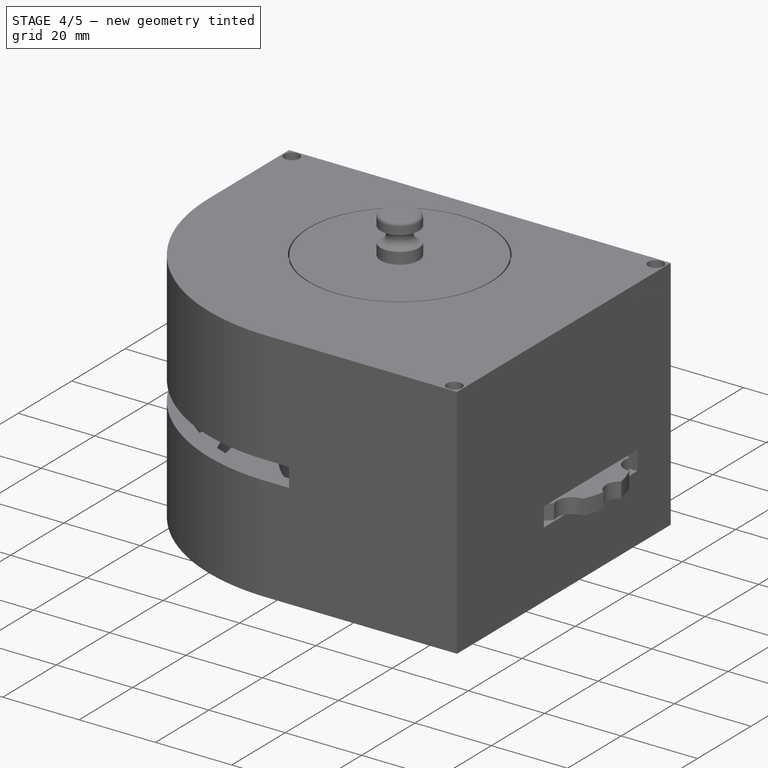
[diagram: stage 4 of 5 — iso view after this stage's code; geometry added in this stage tinted green]
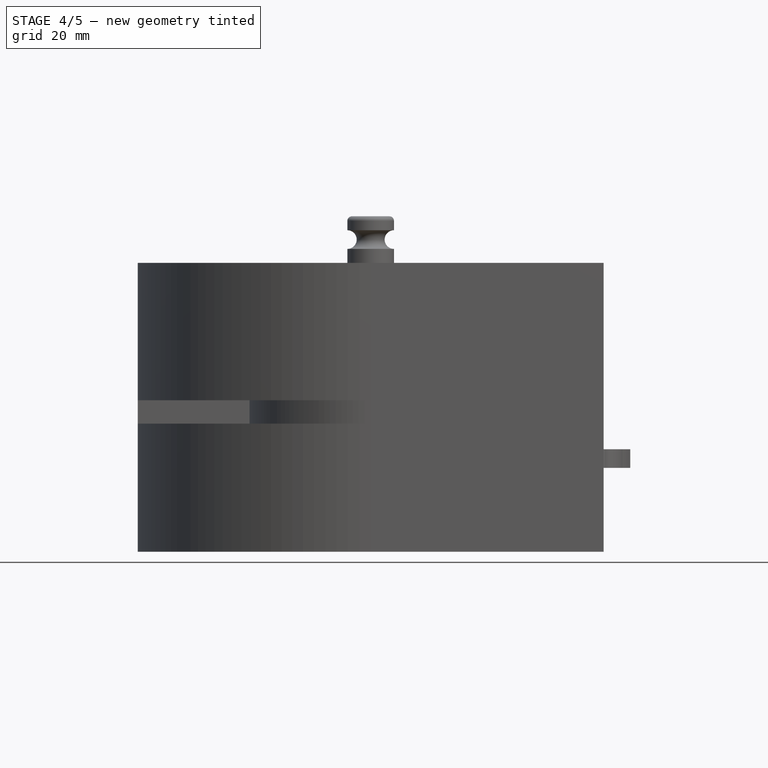
[diagram: stage 4 of 5 — front view after this stage's code; geometry added in this stage tinted green]
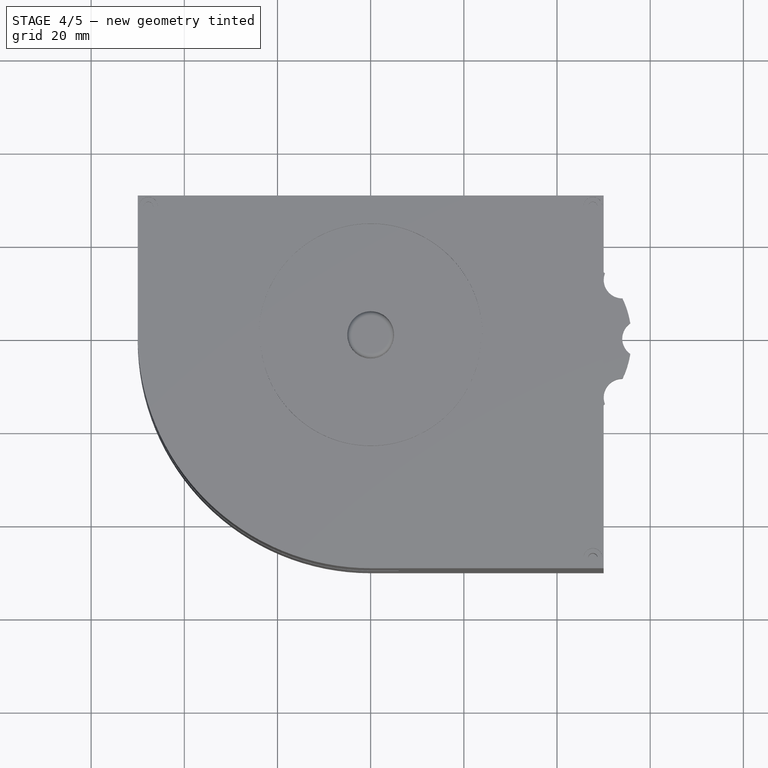
[diagram: stage 4 of 5 — top view after this stage's code; geometry added in this stage tinted green]
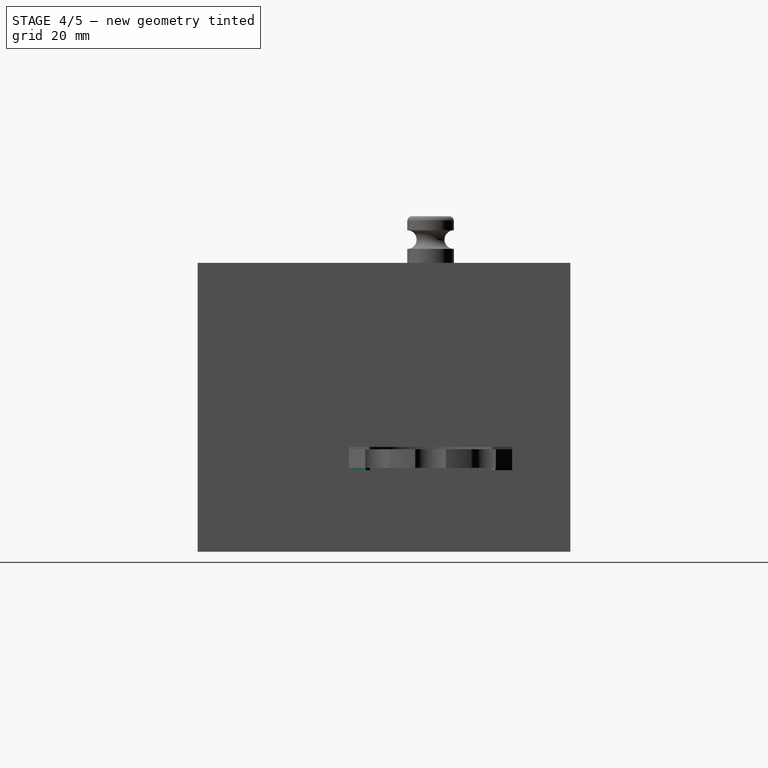
[diagram: stage 4 of 5 — right view after this stage's code; geometry added in this stage tinted green]
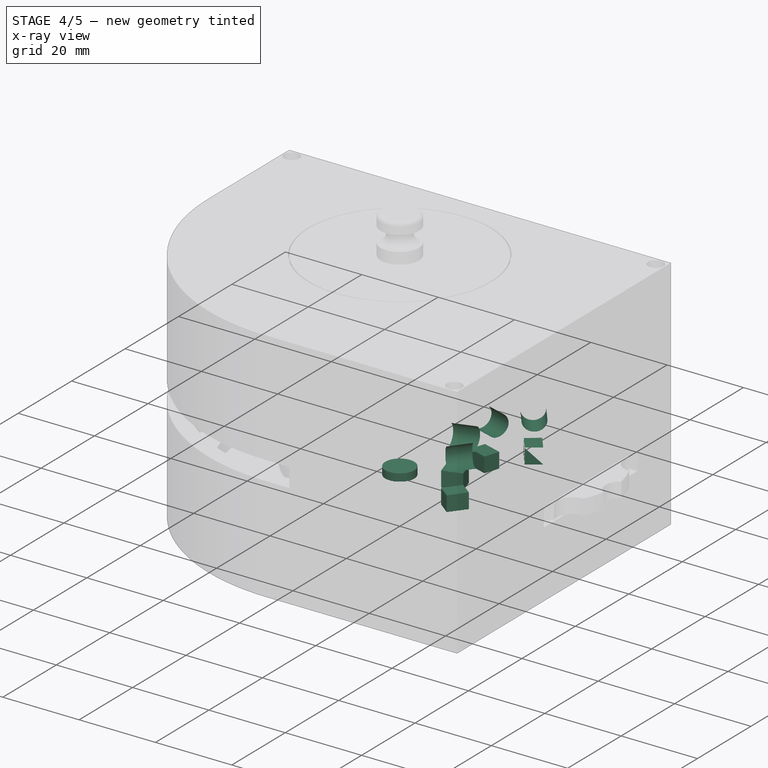
[diagram: stage 4 of 5 — x-ray composite at the iso view; earlier geometry ghosted, this stage's added geometry solid]
FEATURE [Part::Cylinder] Cylinder004  label="Цилиндр004"
  Angle = 360
  AttacherType = Attacher::AttachEngine3D
  Height = 10
  Placement = pos=(15.9719,-6.31482,26) rot=(-0.150393,0.97712,0.150393;1.59394rad)
  Radius = 2.8
  expr: Radius = dip.raddiod + dip.zazuz
FEATURE [Part::Cylinder] Cylinder005  label="Цилиндр005"
  Angle = 360
  AttacherType = Attacher::AttachEngine3D
  Height = 10
  Placement = pos=(15.9719,6.31482,26) rot=(0.150393,0.97712,-0.150393;1.59394rad)
  Radius = 2.8
  expr: Radius = dip.raddiod + dip.zazuz
FEATURE [Part::Cylinder] Cylinder006  label="Цилиндр006"
  Angle = 360
  AttacherType = Attacher::AttachEngine3D
  Height = 10
  Placement = pos=(23.216,16.6604,26) rot=(0.404491,0.820228,-0.404491;1.76768rad)
  Radius = 2.8
  expr: Radius = dip.raddiod + dip.zazuz
FEATURE [Part::Cylinder] Cylinder007  label="Цилиндр007"
  Angle = 360
  AttacherType = Attacher::AttachEngine3D
  Height = 10
  Placement = pos=(23.216,-16.6604,26) rot=(-0.404491,0.820228,0.404491;1.76768rad)
  Radius = 2.8
FEATURE [Part::MultiFuse] Fusion001
  Shapes = -> [Cylinder007,Cylinder004,Cylinder005,Cylinder006]
FEATURE [Part::MultiFuse] Fusion002
  Shapes = -> [Fusion001]
FEATURE [Part::Box] Box003  label="Куб003"
  AttacherType = Attacher::AttachEngine3D
  Height = 5
  Length = 4
  Placement = pos=(16.5734,-8.22226,18.5) rot=(-0.150393,0.97712,0.150393;1.59394rad)
  Width = 4
  expr: Width = dip.ctenka
FEATURE [Part::Box] Box004  label="Куб004"
  AttacherType = Attacher::AttachEngine3D
  Height = 5
  Length = 4
  Placement = pos=(15.3705,4.40739,18.5) rot=(0.150393,0.97712,-0.150393;1.59394rad)
  Width = 4
  expr: Width = dip.ctenka
FEATURE [Part::Box] Box005  label="Куб005"
  AttacherType = Attacher::AttachEngine3D
  Height = 5
  Length = 4
  Placement = pos=(21.6293,15.4429,18.5) rot=(0.404491,0.820228,-0.404491;1.76768rad)
  Width = 4
  expr: Width = dip.ctenka
FEATURE [Part::Box] Box006  label="Куб006"
  AttacherType = Attacher::AttachEngine3D
  Height = 5
  Length = 4
  Placement = pos=(24.8027,-17.8779,18.5) rot=(-0.404491,0.820228,0.404491;1.76768rad)
  Width = 4
  expr: Width = dip.ctenka
FEATURE [Sketcher::SketchObject] Sketch042
  MapMode = 5
  Placement = pos=(0,0,10) rot=(0,0,1;0rad)
  Support = -> [Pad017]
  expr: Constraints[1] = dip.r1 - 0.20000000000000001
  sketch-geometry (1):
    g0: Circle CenterX=0 CenterY=0 CenterZ=0 NormalX=0 NormalY=0 NormalZ=1 AngleXU=0 Radius=3.8
  constraints (2):
    c: Coincident(g0,g-1)
    c: Radius(g0) = 3.8
FEATURE [PartDesign::Pad] Pad018
  BaseFeature = -> Pad017
  Length = 2
  Length2 = 100
  Placement = pos=(0,0,-4) rot=(0,0,1;0rad)
  Profile = -> Sketch042
  Type = 0
  expr: Length = dip.ctenka / 2
FEATURE [PartDesign::Body] Body003
  Group = -> [CopyPocket005,Sketch010,Pad004,Sketch011,Pad005,Sketch012,Pocket006,Sketch013,Pocket007,Sketch050,Pocket023]
  Origin = -> Origin003
  Tip = -> Pocket023
FEATURE [Part::Cut] Cut
  Base = -> Body003
  Tool = -> Fusion002
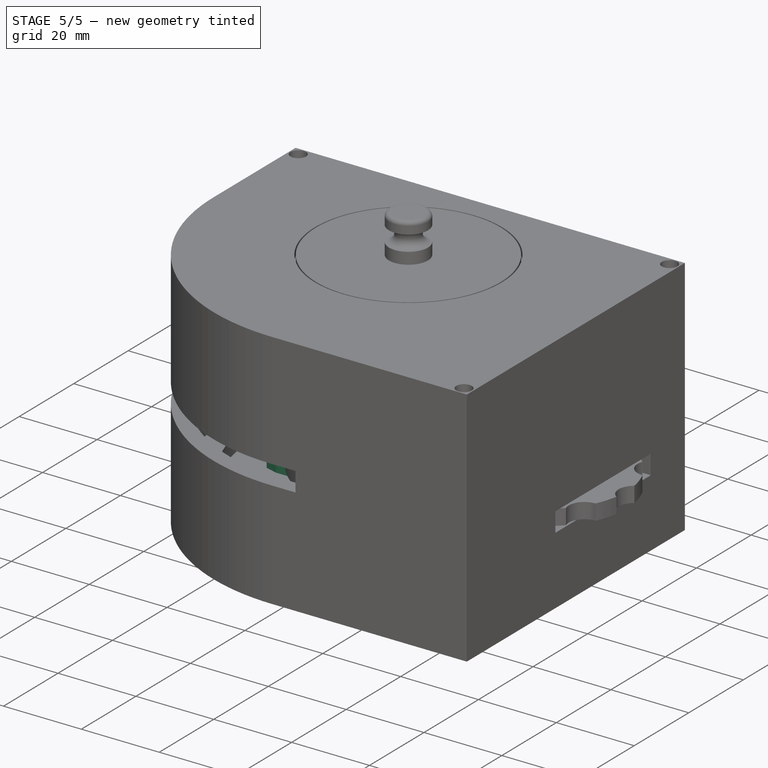
[diagram: stage 5 of 5 — iso view after this stage's code; geometry added in this stage tinted green]
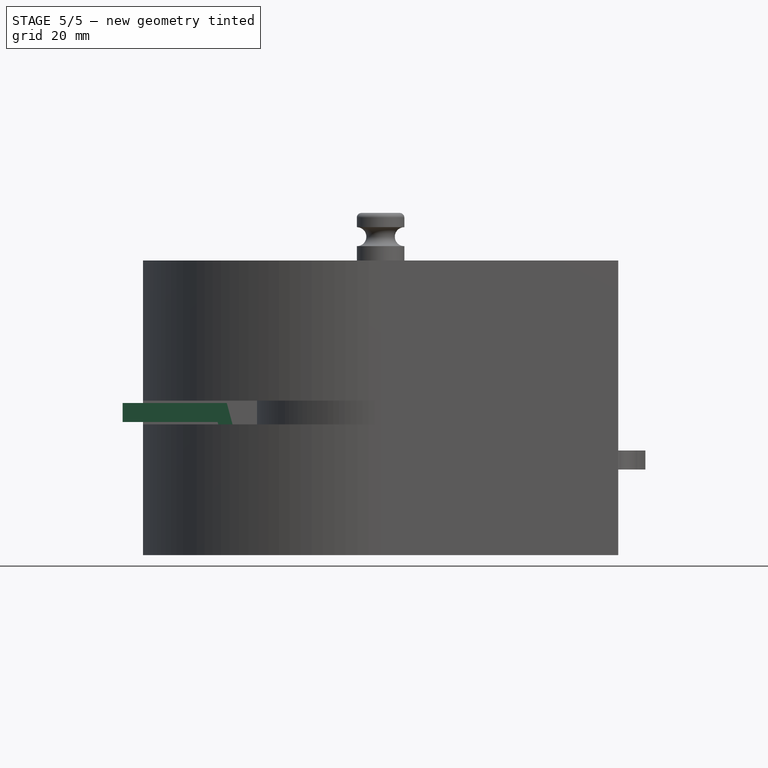
[diagram: stage 5 of 5 — front view after this stage's code; geometry added in this stage tinted green]
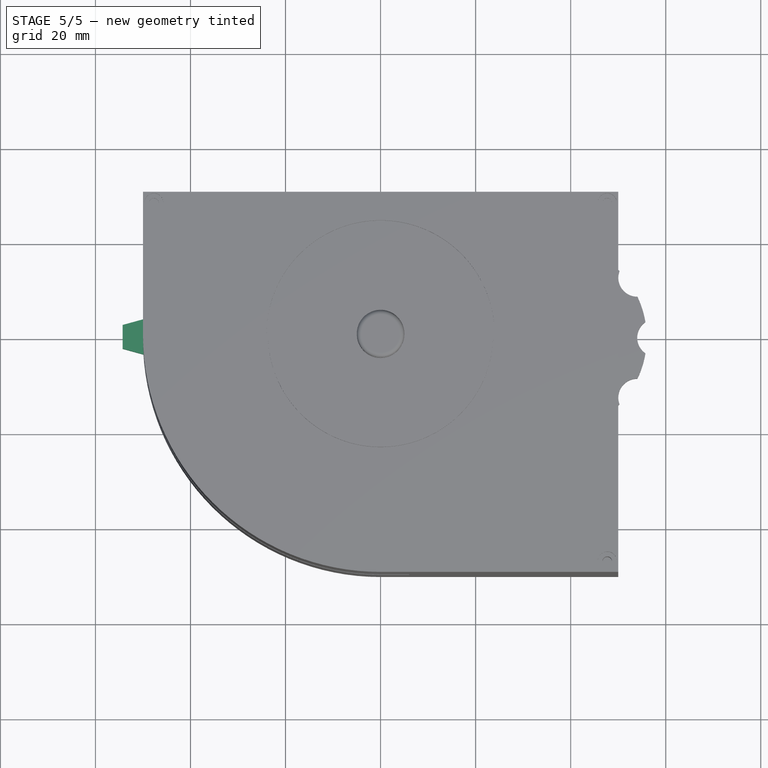
[diagram: stage 5 of 5 — top view after this stage's code; geometry added in this stage tinted green]
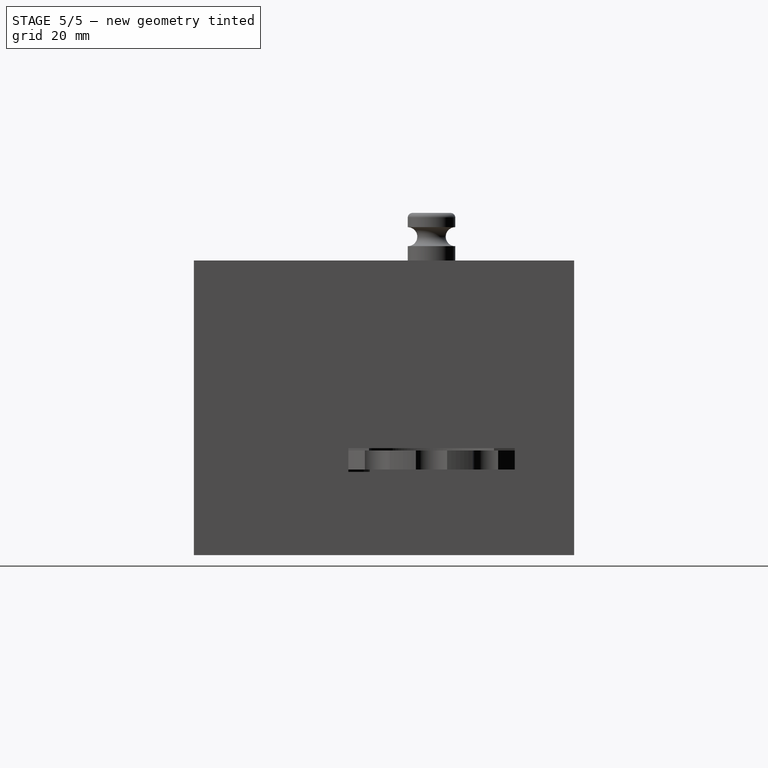
[diagram: stage 5 of 5 — right view after this stage's code; geometry added in this stage tinted green]
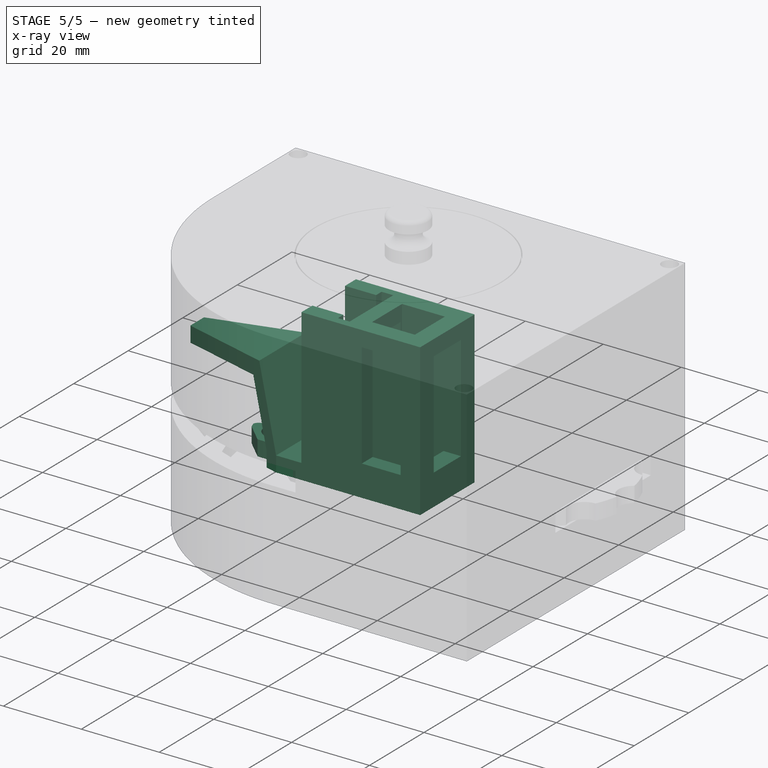
[diagram: stage 5 of 5 — x-ray composite at the iso view; earlier geometry ghosted, this stage's added geometry solid]
FEATURE [PartDesign::ShapeBinder] CopyPocket
FEATURE [Sketcher::SketchObject] Sketch002
  MapMode = 5
  Placement = pos=(0,0,8) rot=(0,0,1;0rad)
  Support = -> [CopyPocket]
  expr: Constraints[1] = dip.ctenka * 2 + dip.kuv + dip.zazbol * 2
  expr: Constraints[8] = dip.dlinkuvd
  sketch-geometry (5):
    g0: LineSegment StartX=10 StartY=-10 StartZ=0 EndX=10 EndY=10 EndZ=0
    g1: LineSegment StartX=10 StartY=10 StartZ=0 EndX=-40 EndY=10 EndZ=0
    g2: LineSegment StartX=-40 StartY=10 StartZ=0 EndX=-40 EndY=-10 EndZ=0
    g3: LineSegment StartX=-40 StartY=-10 StartZ=0 EndX=10 EndY=-10 EndZ=0
    g4: LineSegment [constr] StartX=-10 StartY=-10 StartZ=0 EndX=10 EndY=-10 EndZ=0
  constraints (15):
    c: Vertical(g0)
    c: DistanceY(g0,g0) = 20
    c: Symmetric(g0,g0,g-1)
    c: Horizontal(g1)
    c: Coincident(g1,g2)
    c: Vertical(g2)
    c: Coincident(g2,g3)
    c: Horizontal(g3)
    c: DistanceX(g2,g0) = 50
    c: Coincident(g1,g0)
    c: Coincident(g3,g0)
    c: PointOnObject(g4,g3)
    c: Coincident(g4,g0)
    c: Symmetric(g4,g0,g-2)
    c: Equal(g4,g0)
FEATURE [PartDesign::Pad] Pad001
  Length = 4
  Length2 = 100
  Profile = -> Sketch002
  Type = 0
  expr: Length = dip.ctenka
FEATURE [Sketcher::SketchObject] Sketch003
  MapMode = 5
  Placement = pos=(0,0,12) rot=(0,0,1;0rad)
  Support = -> [Pad001]
  expr: Constraints[1] = dip.r1
  sketch-geometry (1):
    g0: Circle CenterX=0 CenterY=0 CenterZ=0 NormalX=0 NormalY=0 NormalZ=1 AngleXU=0 Radius=4
  constraints (2):
    c: Coincident(g0,g-1)
    c: Radius(g0) = 4
FEATURE [PartDesign::Pocket] Pocket001
  BaseFeature = -> Pad001
  Length = 2
  Length2 = 100
  Profile = -> Sketch003
  Type = 0
  expr: Length = dip.ctenka / 2
FEATURE [Sketcher::SketchObject] Sketch004
  MapMode = 5
  Placement = pos=(0,0,10) rot=(0,0,1;0rad)
  Support = -> [Pocket001]
  expr: Constraints[1] = dip.r2 + dip.zazsv
  sketch-geometry (1):
    g0: Circle CenterX=0 CenterY=0 CenterZ=0 NormalX=0 NormalY=0 NormalZ=1 AngleXU=0 Radius=2.4
  constraints (2):
    c: Coincident(g0,g-1)
    c: Radius(g0) = 2.4
FEATURE [PartDesign::Pocket] Pocket002
  BaseFeature = -> Pocket001
  Length = 2
  Length2 = 100
  Profile = -> Sketch004
  Type = 0
  expr: Length = dip.ctenka / 2
FEATURE [Sketcher::SketchObject] Sketch016
  ExternalGeometry = -> [Pocket002]
  MapMode = 5
  Placement = pos=(0,0,12) rot=(0,0,1;0rad)
  Support = -> [Pocket002]
  expr: Constraints[44] = dip.ctenka / 2
  expr: Constraints[40] = dip.ctenka
  expr: Constraints[43] = dip.ctenka
  expr: Constraints[41] = dip.dlinshel + dip.zazbol
  expr: Constraints[9] = dip.kuv + dip.zazbol
  sketch-geometry (20):
    g0: LineSegment StartX=-5.5 StartY=5.5 StartZ=0 EndX=5.5 EndY=5.5 EndZ=0
    g1: LineSegment StartX=5.5 StartY=5.5 StartZ=0 EndX=5.5 EndY=-5.5 EndZ=0
    g2: LineSegment StartX=5.5 StartY=-5.5 StartZ=0 EndX=-5.5 EndY=-5.5 EndZ=0
    g3: LineSegment StartX=-5.5 StartY=-5.5 StartZ=0 EndX=-5.5 EndY=5.5 EndZ=0
    g4: LineSegment StartX=10 StartY=-10 StartZ=0 EndX=10 EndY=10 EndZ=0
    g5: LineSegment StartX=10 StartY=10 StartZ=0 EndX=-20.5 EndY=10 EndZ=0
    g6: LineSegment StartX=-20.5 StartY=10 StartZ=0 EndX=-20.5 EndY=6 EndZ=0
    g7: LineSegment StartX=-20.5 StartY=6 StartZ=0 EndX=-12.5 EndY=6 EndZ=0
    g8: LineSegment StartX=-12.5 StartY=6 StartZ=0 EndX=-12.5 EndY=8 EndZ=0
    g9: LineSegment StartX=-12.5 StartY=8 StartZ=0 EndX=-9.5 EndY=8 EndZ=0
    g10: LineSegment StartX=-9.5 StartY=8 StartZ=0 EndX=-9.5 EndY=-8 EndZ=0
    g11: LineSegment StartX=-9.5 StartY=-8 StartZ=0 EndX=-12.5 EndY=-8 EndZ=0
    g12: LineSegment StartX=-12.5 StartY=-8 StartZ=0 EndX=-12.5 EndY=-6 EndZ=0
    g13: LineSegment StartX=-12.5 StartY=-6 StartZ=0 EndX=-20.5 EndY=-6 EndZ=0
    g14: LineSegment StartX=-20.5 StartY=-6 StartZ=0 EndX=-20.5 EndY=-10 EndZ=0
    g15: LineSegment StartX=-20.5 StartY=-10 StartZ=0 EndX=10 EndY=-10 EndZ=0
    g16: LineSegment StartX=-27 StartY=10 StartZ=0 EndX=-60 EndY=10 EndZ=0
    g17: LineSegment StartX=-60 StartY=10 StartZ=0 EndX=-60 EndY=-10 EndZ=0
    g18: LineSegment StartX=-60 StartY=-10 StartZ=0 EndX=-27 EndY=-10 EndZ=0
    g19: LineSegment StartX=-27 StartY=-10 StartZ=0 EndX=-27 EndY=10 EndZ=0
  constraints (57):
    c: Coincident(g0,g1)
    c: Coincident(g1,g2)
    c: Coincident(g2,g3)
    c: Coincident(g3,g0)
    c: Horizontal(g0)
    c: Horizontal(g2)
    c: Vertical(g1)
    c: Vertical(g3)
    c: Equal(g0,g1)
    c: DistanceY(g1,g0) = 11
    c: Symmetric(g1,g0,g-1)
    c: Symmetric(g1,g2,g-2)
    c: Coincident(g-3,g4)
    c: Coincident(g4,g-4)
    c: Coincident(g4,g5)
    c: PointOnObject(g5,g-4)
    c: Coincident(g5,g6)
    c: Vertical(g6)
    c: Coincident(g6,g7)
    c: Horizontal(g7)
    c: Coincident(g7,g8)
    c: Vertical(g8)
    c: Coincident(g8,g9)
    c: Horizontal(g9)
    c: Coincident(g9,g10)
    c: Vertical(g10)
    c: Coincident(g10,g11)
    c: Horizontal(g11)
    c: Coincident(g11,g12)
    c: Vertical(g12)
    c: Coincident(g12,g13)
    c: Horizontal(g13)
    c: Coincident(g13,g14)
    c: PointOnObject(g14,g-3)
    c: Vertical(g14)
    c: Coincident(g14,g15)
    c: Coincident(g15,g4)
    c: Symmetric(g10,g9,g-1)
    c: Symmetric(g13,g6,g-1)
    c: Symmetric(g12,g7,g-1)
    c: DistanceX(g10,g2) = 4
    c: DistanceX(g11,g10) = 3
    c: DistanceX(g13,g12) = 8
    c: DistanceY(g14,g13) = 4
    c: DistanceY(g7,g8) = 2
    c: Coincident(g16,g17)
    c: Coincident(g17,g18)
    c: Coincident(g18,g19)
    c: Coincident(g19,g16)
    c: Horizontal(g16)
    c: Horizontal(g18)
    c: Vertical(g17)
    c: Vertical(g19)
    c: PointOnObject(g16,g-4)
    c: PointOnObject(g18,g-3)
    c: DistanceX(g-4,g16) = 13
    c: DistanceX(g16,g-4) = 20
FEATURE [PartDesign::Pad] Pad007
  BaseFeature = -> Pocket002
  Length = 35
  Length2 = 100
  Profile = -> Sketch016
  Type = 0
FEATURE [Sketcher::SketchObject] Sketch017
  ExternalGeometry = -> [Pad007]
  MapMode = 5
  Placement = pos=(10,0,0) rot=(0.57735,0.57735,0.57735;2.0944rad)
  Support = -> [Pad007]
  expr: Constraints[11] = dip.kuv
  expr: Constraints[10] = dip.ctenka
  expr: Constraints[9] = dip.ctenka
  sketch-geometry (4):
    g0: LineSegment StartX=-5 StartY=43 StartZ=0 EndX=5 EndY=43 EndZ=0
    g1: LineSegment StartX=5 StartY=43 StartZ=0 EndX=5 EndY=16 EndZ=0
    g2: LineSegment StartX=5 StartY=16 StartZ=0 EndX=-5 EndY=16 EndZ=0
    g3: LineSegment StartX=-5 StartY=16 StartZ=0 EndX=-5 EndY=43 EndZ=0
  constraints (12):
    c: Coincident(g0,g1)
    c: Coincident(g1,g2)
    c: Coincident(g2,g3)
    c: Coincident(g3,g0)
    c: Horizontal(g0)
    c: Horizontal(g2)
    c: Vertical(g1)
    c: Vertical(g3)
    c: Symmetric(g1,g2,g-2)
    c: DistanceY(g-3,g2) = 4
    c: DistanceY(g0,g-3) = 4
    c: DistanceX(g0,g0) = 10
FEATURE [PartDesign::Pocket] Pocket009
  BaseFeature = -> Pad007
  Length = 20
  Length2 = 100
  Profile = -> Sketch017
  Type = 0
FEATURE [Sketcher::SketchObject] Sketch018
  ExternalGeometry = -> [Pocket009]
  MapMode = 5
  Placement = pos=(0,-10,0) rot=(1,0,0;1.5708rad)
  Support = -> [Pocket009]
  expr: Constraints[11] = dip.kuv
  expr: Constraints[10] = dip.ctenka
  expr: Constraints[9] = dip.ctenka
  sketch-geometry (4):
    g0: LineSegment StartX=-5 StartY=43 StartZ=0 EndX=5 EndY=43 EndZ=0
    g1: LineSegment StartX=5 StartY=43 StartZ=0 EndX=5 EndY=16 EndZ=0
    g2: LineSegment StartX=5 StartY=16 StartZ=0 EndX=-5 EndY=16 EndZ=0
    g3: LineSegment StartX=-5 StartY=16 StartZ=0 EndX=-5 EndY=43 EndZ=0
  constraints (12):
    c: Coincident(g0,g1)
    c: Coincident(g1,g2)
    c: Coincident(g2,g3)
    c: Coincident(g3,g0)
    c: Horizontal(g0)
    c: Horizontal(g2)
    c: Vertical(g1)
    c: Vertical(g3)
    c: Symmetric(g1,g2,g-2)
    c: DistanceY(g-3,g1) = 4
    c: DistanceY(g0,g-3) = 4
    c: DistanceX(g0,g0) = 10
FEATURE [PartDesign::Pocket] Pocket010
  BaseFeature = -> Pocket009
  Length = 4
  Length2 = 100
  Profile = -> Sketch018
  Type = 0
  expr: Length = dip.ctenka
FEATURE [Sketcher::SketchObject] Sketch019
  ExternalGeometry = -> [Pocket010]
  MapMode = 5
  Placement = pos=(0,-10,0) rot=(1,0,0;1.5708rad)
  Support = -> [Pocket010]
  expr: Constraints[8] = dip.ctenka
  sketch-geometry (10):
    g0: LineSegment StartX=-27 StartY=12 StartZ=0 EndX=-32.359 EndY=32 EndZ=0
    g1: LineSegment StartX=-32.359 StartY=32 StartZ=0 EndX=-54.2872 EndY=32 EndZ=0
    g2: LineSegment StartX=-54.2872 StartY=32 StartZ=0 EndX=-54.2872 EndY=28 EndZ=0
    g3: LineSegment StartX=-54.2872 StartY=28 StartZ=0 EndX=-34.2872 EndY=28 EndZ=0
    g4: LineSegment StartX=-34.2872 StartY=28 StartZ=0 EndX=-30 EndY=12 EndZ=0
    g5: LineSegment StartX=-27 StartY=12 StartZ=0 EndX=-27 EndY=47 EndZ=0
    g6: LineSegment StartX=-27 StartY=47 StartZ=0 EndX=-60 EndY=47 EndZ=0
    g7: LineSegment StartX=-60 StartY=47 StartZ=0 EndX=-60 EndY=12 EndZ=0
    g8: LineSegment StartX=-60 StartY=12 StartZ=0 EndX=-40 EndY=12 EndZ=0
    g9: LineSegment StartX=-40 StartY=12 StartZ=0 EndX=-30 EndY=12 EndZ=0
  constraints (26):
    c: Coincident(g-3,g0)
    c: Coincident(g0,g1)
    c: Horizontal(g1)
    c: Coincident(g1,g2)
    c: Vertical(g2)
    c: Coincident(g2,g3)
    c: Horizontal(g3)
    c: Coincident(g3,g4)
    c: DistanceY(g2,g1) = 4
    c: Angle(g-4,g4) = 1.8326
    c: Parallel(g0,g4)
    c: DistanceY(g-4,g3) = 20
    c: DistanceX(g2,g3) = 20
    c: Coincident(g0,g5)
    c: Coincident(g5,g-5)
    c: Coincident(g5,g6)
    c: Coincident(g6,g-6)
    c: Coincident(g6,g7)
    c: Coincident(g7,g-6)
    c: Coincident(g7,g8)
    c: Coincident(g8,g-3)
    c: PointOnObject(g4,g-3)
    c: DistanceX(g4,g0) = 3
    c: PointOnObject(g9,g-3)
    c: Coincident(g9,g4)
    c: Coincident(g8,g9)
FEATURE [PartDesign::Pocket] Pocket011
  BaseFeature = -> Pocket010
  Length = 20
  Length2 = 100
  Profile = -> Sketch019
  Type = 0
FEATURE [Sketcher::SketchObject] Sketch026
  ExternalGeometry = -> [Pocket015]
  MapMode = 5
  Placement = pos=(0,0,8) rot=(0,0,1;0rad)
  Support = -> [Pocket015]
  expr: Constraints[1] = 40 + dip.zazuz
  sketch-geometry (26):
    g0: ArcOfCircle [constr] CenterX=0 CenterY=0 CenterZ=0 NormalX=0 NormalY=0 NormalZ=1 AngleXU=0 Radius=40.3 StartAngle=3.14159 EndAngle=4.71239
    g1: ArcOfCircle CenterX=-1.35038 CenterY=-41.2621 CenterZ=0 NormalX=0 NormalY=0 NormalZ=1 AngleXU=0 Radius=1.5 StartAngle=0.696773 EndAngle=2.37939
    g2: LineSegment StartX=1.07901 StartY=-39.842 StartZ=0 EndX=3 EndY=-37.8527 EndZ=0
    g3: LineSegment StartX=3 StartY=-37.8527 StartZ=0 EndX=3 EndY=-46 EndZ=0
    g4: LineSegment StartX=3 StartY=-46 StartZ=0 EndX=1.4e-11 EndY=-46 EndZ=0
    g5: ArcOfCircle CenterX=0 CenterY=-38.8 CenterZ=0 NormalX=0 NormalY=0 NormalZ=1 AngleXU=0 Radius=1.5 StartAngle=4.71239 EndAngle=5.51524
    g6: GeomPoint X=-1.30131 Y=-39.7629 Z=0
    g7: LineSegment StartX=-0.2 StartY=-40.2995 StartZ=0 EndX=1.2e-11 EndY=-40.3 EndZ=0
    g8: LineSegment [constr] StartX=-2.43535 StartY=-40.2263 StartZ=0 EndX=-0.2 EndY=-40.2995 EndZ=0
    g9: LineSegment [constr] StartX=-1.31767 StartY=-40.2629 StartZ=0 EndX=-1.30131 EndY=-39.7629 EndZ=0
    g10: LineSegment [constr] StartX=1.07901 StartY=-39.842 StartZ=0 EndX=0 EndY=-38.8 EndZ=0
    g11: LineSegment [constr] StartX=0 StartY=-38.8 StartZ=0 EndX=-1.07901 EndY=-39.842 EndZ=0
    g12: ArcOfCircle [constr] CenterX=0 CenterY=-38.8 CenterZ=0 NormalX=0 NormalY=0 NormalZ=1 AngleXU=0 Radius=1.5 StartAngle=3.90954 EndAngle=5.51524
    g13: ArcOfCircle CenterX=0 CenterY=0 CenterZ=0 NormalX=0 NormalY=0 NormalZ=1 AngleXU=0 Radius=40.3 StartAngle=3.20206 EndAngle=4.65192
    g14: ArcOfCircle CenterX=-38.8 CenterY=0 CenterZ=0 NormalX=0 NormalY=0 NormalZ=1 AngleXU=0 Radius=1.5 StartAngle=2.33874 EndAngle=3.14159
    g15: LineSegment [constr] StartX=-38.8 StartY=0 StartZ=0 EndX=-39.842 EndY=1.07901 EndZ=0
    g16: LineSegment [constr] StartX=-38.8 StartY=0 StartZ=0 EndX=-39.842 EndY=-1.07901 EndZ=0
    g17: LineSegment StartX=-39.842 StartY=1.07901 StartZ=0 EndX=-37.8527 EndY=3 EndZ=0
    g18: LineSegment StartX=-37.8527 StartY=3 StartZ=0 EndX=-46 EndY=3 EndZ=0
    g19: LineSegment StartX=-46 StartY=3 StartZ=0 EndX=-46 EndY=-1e-11 EndZ=0
    g20: ArcOfCircle CenterX=-41.2621 CenterY=-1.35038 CenterZ=0 NormalX=0 NormalY=0 NormalZ=1 AngleXU=0 Radius=1.5 StartAngle=5.47459 EndAngle=7.15721
    g21: LineSegment StartX=-40.3 StartY=-8e-12 StartZ=0 EndX=-40.2995 EndY=-0.2 EndZ=0
    g22: ArcOfCircle [constr] CenterX=-38.8 CenterY=0 CenterZ=0 NormalX=0 NormalY=0 NormalZ=1 AngleXU=0 Radius=1.5 StartAngle=2.33874 EndAngle=3.94444
    g23: LineSegment [constr] StartX=-40.2995 StartY=-0.2 StartZ=0 EndX=-40.2263 EndY=-2.43535 EndZ=0
    g24: LineSegment [constr] StartX=-40.2629 StartY=-1.31767 StartZ=0 EndX=-39.7629 EndY=-1.30131 EndZ=0
    g25: ArcOfCircle CenterX=0 CenterY=0 CenterZ=0 NormalX=0 NormalY=0 NormalZ=1 AngleXU=0 Radius=46 StartAngle=3.14159 EndAngle=4.71239
  constraints (74):
    c: Coincident(g0,g-1)
    c: Radius(g0) = 40.3
    c: PointOnObject(g1,g0)
    c: PointOnObject(g1,g0)
    c: Coincident(g2,g3)
    c: Coincident(g3,g4)
    c: PointOnObject(g0,g-2)
    c: PointOnObject(g5,g-2)
    c: PointOnObject(g5,g-2)
    c: Radius(g5) = 1.5
    c: PointOnObject(g6,g1)
    c: Coincident(g7,g1)
    c: Coincident(g7,g0)
    c: Coincident(g8,g1)
    c: Coincident(g8,g1)
    c: PointOnObject(g9,g8)
    c: Coincident(g9,g6)
    c: Symmetric(g1,g1,g9)
    c: Perpendicular(g9,g8)
    c: Coincident(g10,g5)
    c: Coincident(g5,g0)
    c: Angle(g10,g-2) = 2.33874
    c: Tangent(g2,g5) = -1.5708
    c: Coincident(g10,g2)
    c: Coincident(g11,g5)
    c: Coincident(g12,g5)
    c: Coincident(g12,g2)
    c: Horizontal(g11,g2)
    c: Radius(g1) = 1.5
    c: DistanceY(g9,g6) = 0.5
    c: PointOnObject(g0,g-1)
    c: Vertical(g3)
    c: Coincident(g4,g-3)
    c: Horizontal(g4)
    c: DistanceX(g4,g3) = 3
    c: Coincident(g13,g-1)
    c: Coincident(g13,g1)
    c: Coincident(g14,g0)
    c: PointOnObject(g14,g-1)
    c: Coincident(g15,g14)
    c: Coincident(g15,g14)
    c: Coincident(g16,g14)
    c: Angle(g-1,g15) = 2.33874
    c: Radius(g14) = 1.5
    c: Tangent(g14,g17) = 1.5708
    c: Coincident(g17,g18)
    c: Horizontal(g18)
    c: Coincident(g18,g19)
    c: Coincident(g19,g-3)
    c: Vertical(g19)
    c: Equal(g19,g4)
    c: PointOnObject(g20,g0)
    c: PointOnObject(g20,g0)
    c: Coincident(g20,g13)
    c: Radius(g20) = 1.5
    c: Coincident(g21,g0)
    c: Coincident(g21,g20)
    c: Coincident(g22,g14)
    c: Coincident(g22,g16)
    c: Coincident(g22,g14)
    c: Coincident(g23,g20)
    c: PointOnObject(g24,g23)
    c: PointOnObject(g24,g20)
    c: Coincident(g23,g13)
    c: Symmetric(g13,g20,g24)
    c: Perpendicular(g23,g24)
    c: Vertical(g14,g16)
    c: Coincident(g25,g-1)
    c: Coincident(g25,g19)
    c: PointOnObject(g25,g-2)
    c: Equal(g24,g9)
    c: Coincident(g12,g11)
    c: DistanceX(g1,g0) = 0.2
    c: Equal(g21,g7)
FEATURE [Sketcher::SketchObject] Sketch027
  ExternalGeometry = -> [Pocket011]
  MapMode = 5
  Placement = pos=(0,0,32) rot=(0,0,1;0rad)
  Support = -> [Pocket011]
  sketch-geometry (6):
    g0: LineSegment StartX=-54.2872 StartY=-10 StartZ=0 EndX=-54.2872 EndY=-2.5 EndZ=0
    g1: LineSegment StartX=-54.2872 StartY=-2.5 StartZ=0 EndX=-27 EndY=-10 EndZ=0
    g2: LineSegment StartX=-27 StartY=-10 StartZ=0 EndX=-54.2872 EndY=-10 EndZ=0
    g3: LineSegment StartX=-54.2872 StartY=2.5 StartZ=0 EndX=-54.2872 EndY=10 EndZ=0
    g4: LineSegment StartX=-54.2872 StartY=10 StartZ=0 EndX=-27 EndY=10 EndZ=0
    g5: LineSegment StartX=-27 StartY=10 StartZ=0 EndX=-54.2872 EndY=2.5 EndZ=0
  constraints (16):
    c: Coincident(g-4,g0)
    c: PointOnObject(g0,g-4)
    c: Coincident(g0,g1)
    c: Coincident(g1,g2)
    c: Coincident(g2,g0)
    c: Horizontal(g1,g-3)
    c: PointOnObject(g3,g-4)
    c: Coincident(g3,g-4)
    c: Coincident(g3,g4)
    c: Horizontal(g4)
    c: Coincident(g4,g5)
    c: Coincident(g5,g3)
    c: Symmetric(g1,g4,g-1)
    c: Symmetric(g0,g3,g-1)
    c: Coincident(g-5,g1)
    c: DistanceY(g0,g0) = 7.5
FEATURE [PartDesign::Pocket] Pocket016
  BaseFeature = -> Pocket011
  Length = 25
  Length2 = 100
  Profile = -> Sketch027
  Type = 0
FEATURE [Sketcher::SketchObject] Sketch028
  ExternalGeometry = -> [Pocket016]
  MapMode = 5
  Placement = pos=(0,0,8) rot=(1,0,0;3.14159rad)
  Support = -> [Pocket016]
  sketch-geometry (7):
    g0: LineSegment StartX=-39.544 StartY=1.07706 StartZ=0 EndX=-34.8 EndY=5.67544 EndZ=0
    g1: LineSegment StartX=-34.8 StartY=5.67544 StartZ=0 EndX=-30 EndY=5.67544 EndZ=0
    g2: LineSegment StartX=-30 StartY=5.67544 StartZ=0 EndX=-30 EndY=9.17544 EndZ=0
    g3: LineSegment StartX=-30 StartY=9.17544 StartZ=0 EndX=-40 EndY=6.42689 EndZ=0
    g4: LineSegment StartX=-40 StartY=0 StartZ=0 EndX=-40 EndY=6.42689 EndZ=0
    g5: ArcOfCircle CenterX=-38.5 CenterY=0 CenterZ=0 NormalX=0 NormalY=0 NormalZ=1 AngleXU=0 Radius=1.5 StartAngle=2.34061 EndAngle=3.14159
    g6: LineSegment [constr] StartX=-39.544 StartY=1.07706 StartZ=0 EndX=-38.5 EndY=0 EndZ=0
  constraints (19):
    c: Coincident(g0,g1)
    c: Horizontal(g1)
    c: Coincident(g1,g2)
    c: Coincident(g3,g-4)
    c: DistanceY(g1,g2) = 3.5
    c: DistanceX(g3,g0) = 5.2
    c: Coincident(g4,g3)
    c: Vertical(g4)
    c: PointOnObject(g5,g-1)
    c: Tangent(g5,g0) = 1.5708
    c: Coincident(g5,g4)
    c: PointOnObject(g5,g-1)
    c: Radius(g5) = 1.5
    c: Vertical(g2)
    c: Coincident(g3,g2)
    c: PointOnObject(g2,g-3)
    c: DistanceX(g2,g-3) = 3
    c: Coincident(g6,g0)
    c: Coincident(g6,g5)
FEATURE [PartDesign::Pocket] Pocket017
  BaseFeature = -> Pocket016
  Length = 4
  Length2 = 100
  Profile = -> Sketch028
  Type = 0
FEATURE [Sketcher::SketchObject] Sketch029
  ExternalGeometry = -> [Pocket017]
  MapMode = 5
  Placement = pos=(0,0,8) rot=(1,0,0;3.14159rad)
  Support = -> [Pocket017]
  sketch-geometry (5):
    g0: ArcOfCircle CenterX=-38.5 CenterY=0 CenterZ=0 NormalX=0 NormalY=0 NormalZ=1 AngleXU=0 Radius=1.5 StartAngle=3.14159 EndAngle=6.28319
    g1: LineSegment StartX=-40 StartY=0 StartZ=0 EndX=-40 EndY=-6.42689 EndZ=0
    g2: LineSegment StartX=-40 StartY=-6.42689 StartZ=0 EndX=-30 EndY=-9.17544 EndZ=0
    g3: LineSegment StartX=-30 StartY=-9.17544 StartZ=0 EndX=-30 EndY=0 EndZ=0
    g4: ArcOfCircle CenterX=-33.5 CenterY=0 CenterZ=0 NormalX=0 NormalY=0 NormalZ=1 AngleXU=0 Radius=3.5 StartAngle=0 EndAngle=3.14159
  constraints (15):
    c: Coincident(g0,g-3)
    c: Coincident(g0,g1)
    c: Coincident(g1,g2)
    c: PointOnObject(g3,g-1)
    c: Vertical(g3)
    c: PointOnObject(g4,g-1)
    c: Coincident(g4,g3)
    c: Coincident(g4,g0)
    c: PointOnObject(g0,g-1)
    c: PointOnObject(g0,g-1)
    c: Coincident(g1,g-4)
    c: Radius(g0) = 1.5
    c: Coincident(g3,g2)
    c: PointOnObject(g2,g-4)
    c: Vertical(g2,g-5)
FEATURE [PartDesign::Pocket] Pocket018
  BaseFeature = -> Pocket017
  Length = 4
  Length2 = 100
  Profile = -> Sketch029
  Type = 0
FEATURE [Part::MultiFuse] Fusion
  Shapes = -> [Box006,Box003,Box004,Box005]
FEATURE [Part::Cut] Cut001
  Base = -> Cut
  Tool = -> Fusion
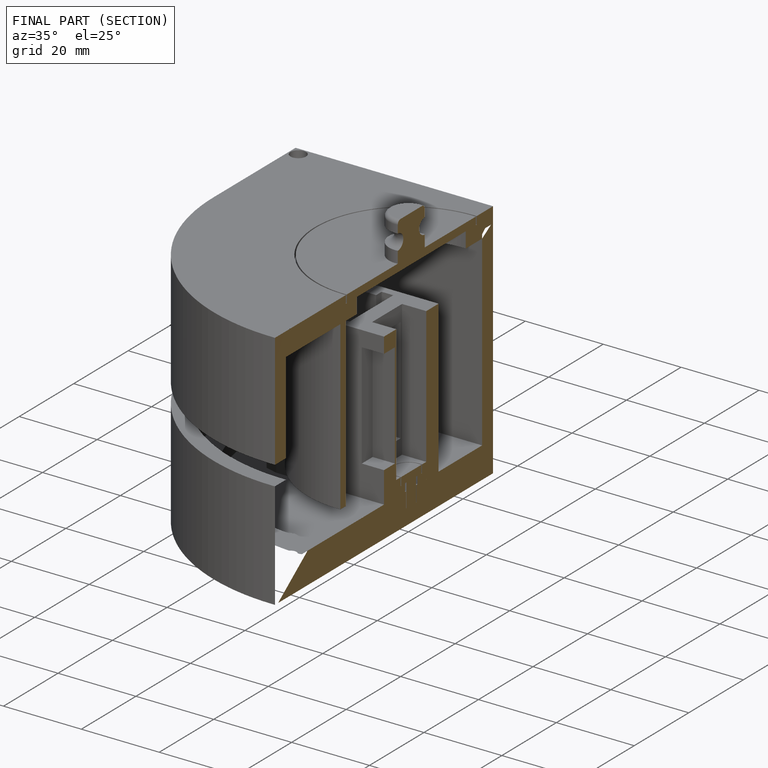
[diagram: finished part — half-section view (interior)]
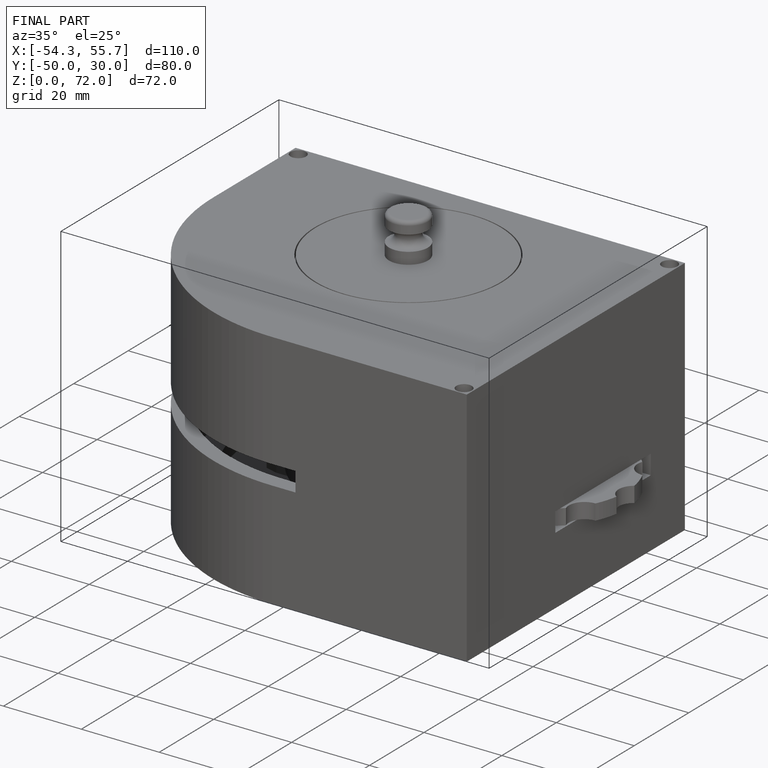
[diagram: finished part — iso view with bounding-box wireframe]
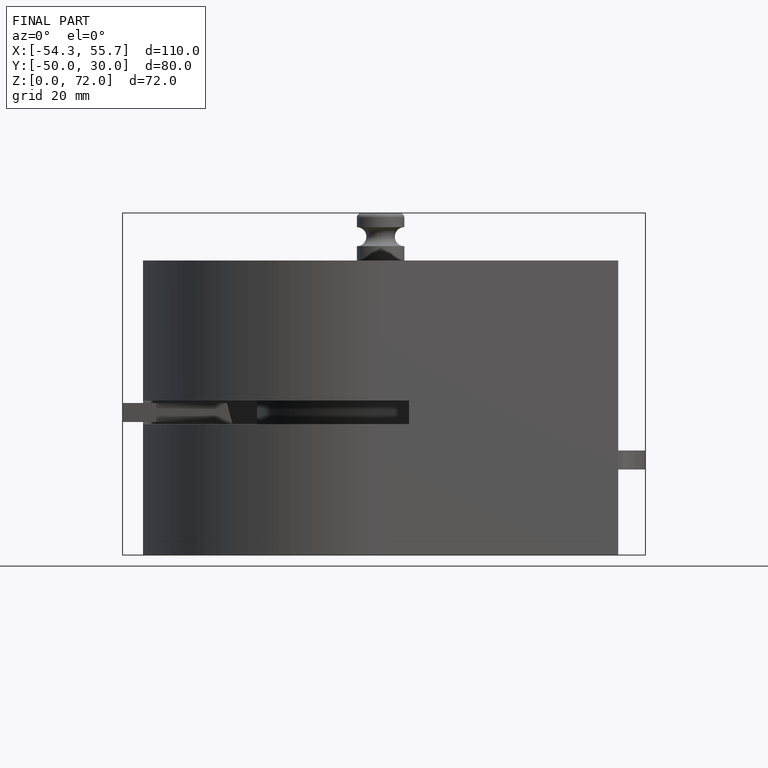
[diagram: finished part — front view with bounding-box wireframe]
